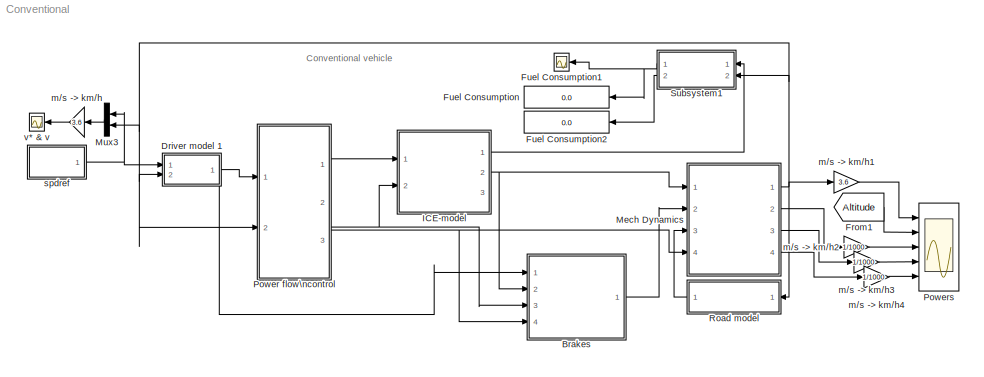
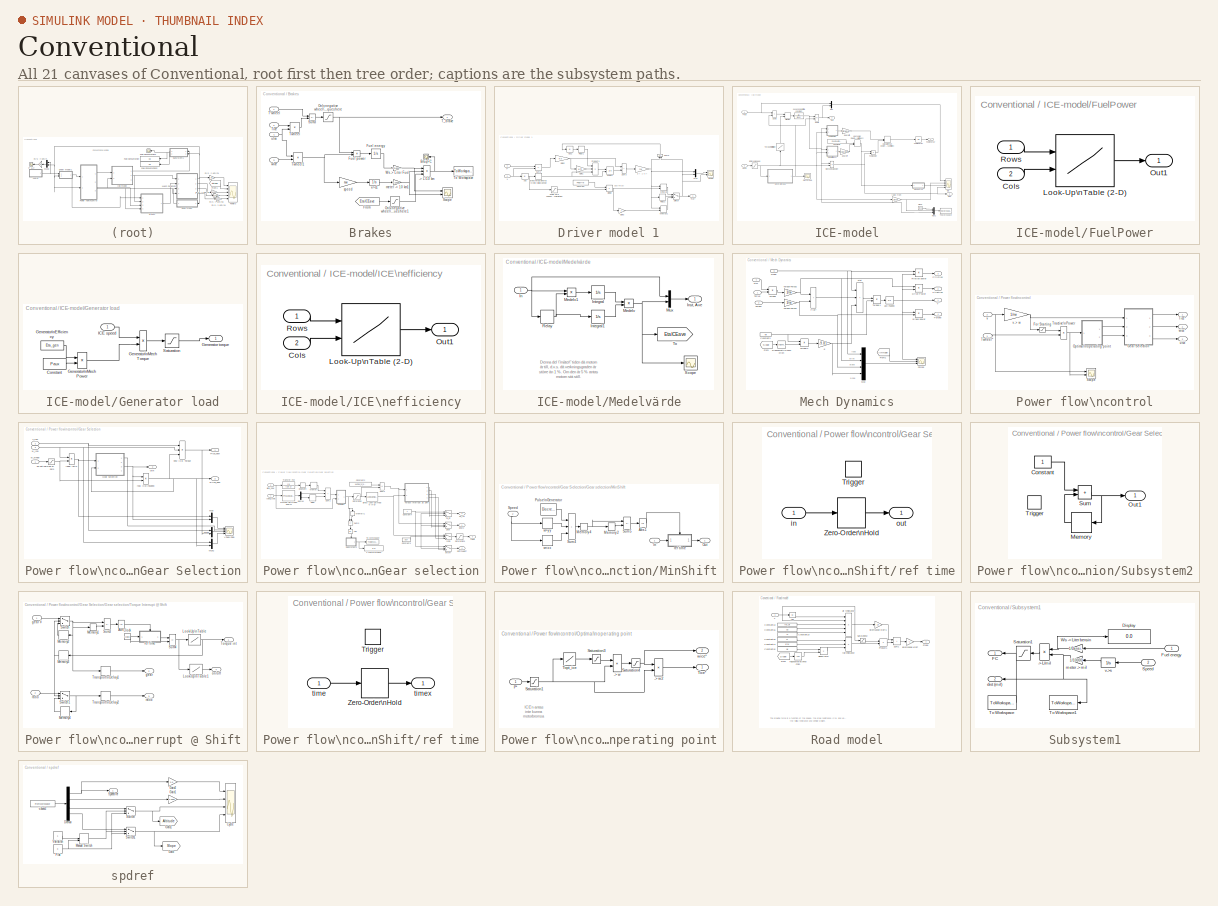
[diagram: thumbnail index - all 21 canvases of the model, root first then tree order]
MODEL Conventional
KIND model
BLOCK [SubSystem] Brakes
  Ports = [4, 1]
  RequestExecContextInheritance = off
  SID = 1
BLOCK [Product] Brakes/-> L//10 km
  InputSameDT = on
  Inputs = *//
  OutDataTypeStr = Inherit: Same as first input
  Ports = [3, 1]
  SID = 6
  SaturateOnIntegerOverflow = on
BLOCK [Scope] Brakes/BrEqFC
  Floating = off
  NameLocation = top
  NumInputPorts = 1
  Ports = [1]
  SID = 7
  ScopeSpecificationString = C++SS(StrPVP('Location','[596, 319, 1214, 719]'),StrPVP('Open','off'),StrPVP('ZoomMode','yonly'),MxPVP('AxesTitles',54,'struct(''axes1'',''Bränsleförbrukning [Liter/mil]'')'),StrPVP('ShowLegends','off'),StrPVP('TimeRange','1200'),StrPVP('YMin','-2.6'),StrPVP('YMax','-2.1'),StrPVP('SaveName','ScopeData1'),StrPVP('DataFormat','StructureWithTime'),StrPVP('MaxDataPoints','5000000'),StrPVP('BlockParamS...<+110ch>
BLOCK [From] Brakes/From
  CloseFcn = tagdialog Close
  GotoTag = EtaICEave
  SID = 8
  TagVisibility = global
BLOCK [Integrator] Brakes/Fuel energy 
  Ports = [1, 1]
  SID = 9
BLOCK [Product] Brakes/Fuel power
  InputSameDT = on
  Inputs = **
  OutDataTypeStr = Inherit: Same as first input
  Ports = [2, 1]
  SID = 10
  SaturateOnIntegerOverflow = on
BLOCK [Saturate] Brakes/Only negative wheel\ntorques here
  LowerLimit = -inf
  SID = 11
  UpperLimit = 0
BLOCK [Saturate] Brakes/Only negative wheel\ntorques here1
  LowerLimit = eps
  SID = 12
  UpperLimit = inf
BLOCK [Scope] Brakes/Scope
  Floating = off
  NumInputPorts = 2
  Ports = [2]
  SID = 13
  ScopeSpecificationString = C++SS(StrPVP('Location','[635, 215, 970, 652]'),StrPVP('Open','off'),MxPVP('AxesTitles',54,'struct(''axes1'',''%<SignalLabel>'',''axes2'',''%<SignalLabel>'')'),StrPVP('ShowLegends','off'),StrPVP('YMin','-5~-5'),StrPVP('YMax','5~5'),StrPVP('SaveName','ScopeData6'),StrPVP('DataFormat','StructureWithTime'),StrPVP('LimitDataPoints','off'),StrPVP('BlockParamSampleTime','0'),StrPVP('Decimation','1'),Str...<+35ch>
BLOCK [Sum] Brakes/Sum3
  IconShape = rectangular
  InputSameDT = on
  Inputs = +-
  OutDataTypeStr = Inherit: Same as first input
  Ports = [2, 1]
  SID = 14
  SaturateOnIntegerOverflow = on
BLOCK [Inport] Brakes/T*wheel
  SID = 2
BLOCK [Outport] Brakes/T_brake
  InitialOutput = 0
  SID = 21
  VectorParamsAs1DForOutWhenUnconnected = off
BLOCK [Inport] Brakes/Tice
  Port = 2
  SID = 3
BLOCK [ToWorkspace] Brakes/To Workspace
  MaxDataPoints = inf
  Ports = [1]
  SID = 15
  SampleTime = -1
  VariableName = BrEqFC
BLOCK [Product] Brakes/Twheel
  InputSameDT = on
  OutDataTypeStr = Inherit: Same as first input
  Ports = [2, 1]
  SID = 16
  SaturateOnIntegerOverflow = on
BLOCK [Product] Brakes/Twheel1
  InputSameDT = on
  Inputs = */
  OutDataTypeStr = Inherit: Same as first input
  Ports = [2, 1]
  SID = 309
  SaturateOnIntegerOverflow = on
BLOCK [Gain] Brakes/Ws -> Liter Fuel
  Gain = 1/Density
  OutDataTypeStr = Inherit: Same as input
  ParamDataTypeStr = Inherit: Same as input
  SID = 17
  SaturateOnIntegerOverflow = on
BLOCK [Gain] Brakes/meter -> 10 km1
  Gain = 1/10000
  OutDataTypeStr = Inherit: Same as input
  ParamDataTypeStr = Inherit: Same as input
  SID = 18
  SaturateOnIntegerOverflow = on
BLOCK [Gain] Brakes/speed
  Gain = rw
  OutDataTypeStr = Inherit: Same as input
  ParamDataTypeStr = Inherit: Same as input
  SID = 19
  SaturateOnIntegerOverflow = on
BLOCK [Inport] Brakes/utvx
  Port = 4
  SID = 5
BLOCK [Integrator] Brakes/v->s1
  InitialCondition = 100
  LimitOutput = on
  LowerSaturationLimit = 100
  Ports = [1, 1]
  SID = 20
BLOCK [Inport] Brakes/wice
  Port = 3
  SID = 4
BLOCK [SubSystem] Driver model 1
  NameLocation = top
  Ports = [2, 1]
  RequestExecContextInheritance = off
  SID = 22
BLOCK [Abs] Driver model 1/Abs
  SID = 25
BLOCK [Abs] Driver model 1/Abs2
  SID = 26
BLOCK [Constant] Driver model 1/Constant
  SID = 27
  Value = Pmax*rw
BLOCK [Product] Driver model 1/Divide
  Inputs = */
  Ports = [2, 1]
  SID = 28
BLOCK [Gain] Driver model 1/F * -> T *
  Gain = rw
  OutDataTypeStr = Inherit: Same as input
  ParamDataTypeStr = Inherit: Same as input
  SID = 29
  SaturateOnIntegerOverflow = on
BLOCK [Gain] Driver model 1/Gain1
  Gain = 1/Ti
  OutDataTypeStr = Inherit: Same as input
  ParamDataTypeStr = Inherit: Same as input
  SID = 30
  SaturateOnIntegerOverflow = on
BLOCK [Gain] Driver model 1/Gain2
  Gain = Kv
  OutDataTypeStr = Inherit: Same as input
  ParamDataTypeStr = Inherit: Same as input
  SID = 31
  SaturateOnIntegerOverflow = on
BLOCK [Gain] Driver model 1/Gain3
  Gain = -1
  OutDataTypeStr = Inherit: Same as input
  ParamDataTypeStr = Inherit: Same as input
  SID = 32
  SaturateOnIntegerOverflow = on
BLOCK [MinMax] Driver model 1/MinMax
  Inputs = 2
  Ports = [2, 1]
  SID = 33
BLOCK [MinMax] Driver model 1/MinMax1
  Function = max
  Inputs = 2
  Ports = [2, 1]
  SID = 34
BLOCK [Mux] Driver model 1/Mux
  DisplayOption = bar
  Inputs = 2
  Ports = [2, 1]
  SID = 311
BLOCK [Product] Driver model 1/Product1
  InputSameDT = on
  Inputs = 3
  NameLocation = top
  OutDataTypeStr = Inherit: Same as first input
  Ports = [3, 1]
  SID = 35
  SaturateOnIntegerOverflow = on
BLOCK [Relay] Driver model 1/Relay1
  OffOutputValue = 1
  OnOutputValue = 0
  SID = 36
BLOCK [Relay] Driver model 1/Relay2
  OffOutputValue = 1
  OnOutputValue = 10
  SID = 37
BLOCK [Scope] Driver model 1/Scope
  Floating = off
  NumInputPorts = 2
  Ports = [2]
  SID = 310
  ScopeSpecificationString = Simulink.scopes.TimeScopeBlockCfg('CurrentConfiguration', extmgr.ConfigurationSet(extmgr.Configuration('Core','General UI',true),extmgr.Configuration('Core','Source UI',true),extmgr.Configuration('Sources','WiredSimulink',true,'DataLoggingVariableName','ScopeData1'),extmgr.Configuration('Visuals','Time Domain',true,'SerializedDisplays',{struct('MinYLimReal','-13248.18703','MaxYLimReal','30622.5335...<+2024ch>
BLOCK [Relay] Driver model 1/Stäng integralverkan\nvid stillastående
  OffSwitchValue = 0.3-eps
  OnSwitchValue = 0.3
  SID = 38
BLOCK [Sum] Driver model 1/Sum2
  IconShape = rectangular
  InputSameDT = on
  Inputs = +-
  OutDataTypeStr = Inherit: Same as first input
  Ports = [2, 1]
  SID = 39
  SaturateOnIntegerOverflow = on
BLOCK [Sum] Driver model 1/Sum3
  IconShape = rectangular
  InputSameDT = on
  OutDataTypeStr = Inherit: Same as first input
  Ports = [2, 1]
  SID = 40
  SaturateOnIntegerOverflow = on
BLOCK [Sum] Driver model 1/Sum5
  IconShape = rectangular
  InputSameDT = on
  Inputs = +-
  NameLocation = right
  OutDataTypeStr = Inherit: Same as first input
  Ports = [2, 1]
  SID = 41
  SaturateOnIntegerOverflow = on
BLOCK [Switch] Driver model 1/Switch
  InputSameDT = off
  SID = 42
  SaturateOnIntegerOverflow = off
BLOCK [Outport] Driver model 1/Ttot*
  InitialOutput = 0
  SID = 45
  VectorParamsAs1DForOutWhenUnconnected = off
BLOCK [Integrator] Driver model 1/Wbatt
  ExternalReset = falling
  LowerSaturationLimit = -10000
  NameLocation = top
  Ports = [2, 1]
  SID = 43
  UpperSaturationLimit = 1000
BLOCK [Saturate] Driver model 1/avoid zero speed\nfor max torque calculation
  LowerLimit = 5/3.6
  SID = 44
  UpperLimit = inf
BLOCK [Inport] Driver model 1/v
  Port = 2
  SID = 24
BLOCK [Inport] Driver model 1/v*
  SID = 23
BLOCK [From] From1
  CloseFcn = tagdialog Close
  GotoTag = Altitude
  IconDisplay = Tag and signal name
  SID = 48
  TagVisibility = global
BLOCK [Display] Fuel Consumption
  Decimation = 1
  NameLocation = top
  Ports = [1]
  SID = 312
BLOCK [Scope] Fuel Consumption1
  Floating = off
  NumInputPorts = 1
  Ports = [1]
  SID = 314
  ScopeSpecificationString = Simulink.scopes.TimeScopeBlockCfg('CurrentConfiguration', extmgr.ConfigurationSet(extmgr.Configuration('Core','General UI',true),extmgr.Configuration('Core','Source UI',true),extmgr.Configuration('Sources','WiredSimulink',true,'DataLoggingVariableName','ScopeData2','DataLoggingSaveFormat','Array','DataLoggingDecimation','1','DataLoggingDecimateData',true),extmgr.Configuration('Visuals','Time Domai...<+1560ch>
BLOCK [Display] Fuel Consumption2
  Decimation = 1
  NameLocation = top
  Ports = [1]
  SID = 313
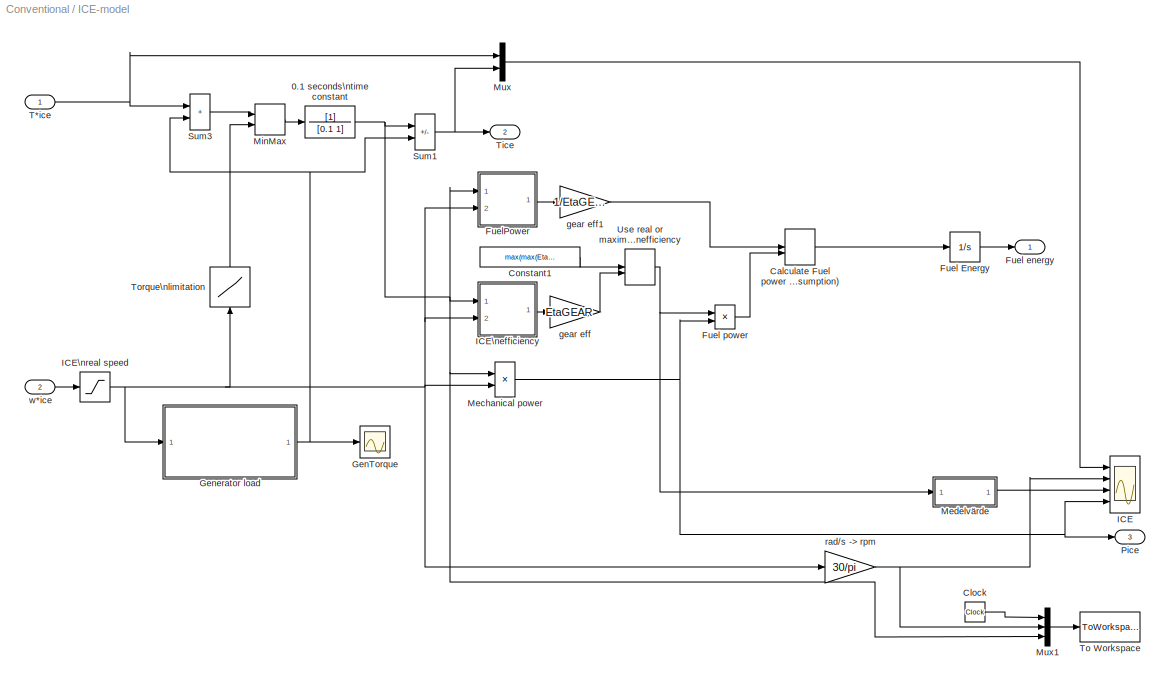
BLOCK [SubSystem] ICE-model
  NameLocation = top
  Ports = [2, 3]
  RequestExecContextInheritance = off
  SID = 50
BLOCK [TransferFcn] ICE-model/0.1 seconds\ntime constant
  Denominator = [0.1 1]
  SID = 53
BLOCK [ManualSwitch] ICE-model/Calculate Fuel power directly\n(including idle consumption)
  NameLocation = top
  SID = 54
BLOCK [Clock] ICE-model/Clock
  SID = 55
BLOCK [Constant] ICE-model/Constant1
  SID = 56
  Value = max(max(EtaICE))
BLOCK [Integrator] ICE-model/Fuel Energy
  Ports = [1, 1]
  SID = 57
BLOCK [Outport] ICE-model/Fuel energy
  InitialOutput = 0
  SID = 103
  VectorParamsAs1DForOutWhenUnconnected = off
BLOCK [Product] ICE-model/Fuel power
  InputSameDT = on
  Inputs = /*
  OutDataTypeStr = Inherit: Same as first input
  Ports = [2, 1]
  SID = 58
  SaturateOnIntegerOverflow = on
BLOCK [SubSystem] ICE-model/FuelPower
  Ports = [2, 1]
  RequestExecContextInheritance = off
  SID = 59
BLOCK [Inport] ICE-model/FuelPower/Cols
  Port = 2
  SID = 61
BLOCK [Lookup2D] ICE-model/FuelPower/Look-Up\nTable (2-D)
  ColumnIndex = y
  RowIndex = x
  SID = 62
  Table = t
BLOCK [Outport] ICE-model/FuelPower/Out1
  SID = 63
  VectorParamsAs1DForOutWhenUnconnected = off
BLOCK [Inport] ICE-model/FuelPower/Rows
  SID = 60
BLOCK [Scope] ICE-model/GenTorque
  Floating = off
  NumInputPorts = 1
  Ports = [1]
  SID = 299
  ScopeSpecificationString = C++SS(StrPVP('Location','[51, 447, 840, 686]'),StrPVP('Open','off'),MxPVP('AxesTitles',54,'struct(''axes1'',''%<SignalLabel>'')'),MxPVP('ScopeGraphics',57,'struct(''FigureColor'',''[0.5 0.5 0.5]'',''AxesColor'',''[0 0 0]'',''AxesTickColor'',''[1 1 1]'',''LineColors'',''[1 1 0;1 0 1;0 1 1;1 0 0;0 1 0;0 0 1]'',''LineStyles'',''-|-|-|-|-|-'',''LineWidths'',''[0.5 0.5 0.5 0.5 0.5 0.5]'',''MarkerStyles...<+309ch>
BLOCK [SubSystem] ICE-model/Generator load
  Ports = [1, 1]
  RequestExecContextInheritance = off
  SID = 64
BLOCK [Constant] ICE-model/Generator load/Constant
  NameLocation = top
  SID = 66
  Value = Paux
BLOCK [Outport] ICE-model/Generator load/Generator torque
  SID = 71
  VectorParamsAs1DForOutWhenUnconnected = off
BLOCK [Constant] ICE-model/Generator load/Generator\nEfficiency
  NameLocation = top
  SID = 67
  Value = Eta_gen
BLOCK [Product] ICE-model/Generator load/Generator\nMech Power
  InputSameDT = on
  Inputs = /*
  OutDataTypeStr = Inherit: Same as first input
  Ports = [2, 1]
  SID = 68
  SaturateOnIntegerOverflow = on
BLOCK [Product] ICE-model/Generator load/Generator\nMech Torque
  InputSameDT = on
  Inputs = /*
  NameLocation = top
  OutDataTypeStr = Inherit: Same as first input
  Ports = [2, 1]
  SID = 69
  SaturateOnIntegerOverflow = on
BLOCK [Inport] ICE-model/Generator load/ICE speed
  SID = 65
BLOCK [Saturate] ICE-model/Generator load/Saturation
  LowerLimit = 0
  SID = 70
  UpperLimit = Paux*2/(wice_max/5)
BLOCK [Scope] ICE-model/ICE
  Floating = off
  NumInputPorts = 4
  Ports = [4]
  SID = 72
  ScopeSpecificationString = Simulink.scopes.TimeScopeBlockCfg('CurrentConfiguration', extmgr.ConfigurationSet(extmgr.Configuration('Core','General UI',true),extmgr.Configuration('Core','Source UI',true),extmgr.Configuration('Sources','WiredSimulink',true,'DataLogging',true,'DataLoggingSaveFormat','StructureWithTime','DataLoggingMaxPoints','50000','DataLoggingLimitDataPoints',true,'DataLoggingDecimation','1','DataLoggingDecim...<+3890ch>
BLOCK [SubSystem] ICE-model/ICE\nefficiency
  Ports = [2, 1]
  RequestExecContextInheritance = off
  SID = 73
BLOCK [Inport] ICE-model/ICE\nefficiency/Cols
  Port = 2
  SID = 75
BLOCK [Lookup2D] ICE-model/ICE\nefficiency/Look-Up\nTable (2-D)
  ColumnIndex = y
  RowIndex = x
  SID = 76
  Table = t
BLOCK [Outport] ICE-model/ICE\nefficiency/Out1
  SID = 77
  VectorParamsAs1DForOutWhenUnconnected = off
BLOCK [Inport] ICE-model/ICE\nefficiency/Rows
  SID = 74
BLOCK [Saturate] ICE-model/ICE\nreal speed
  LowerLimit = wice_min
  SID = 78
  UpperLimit = wice_max
BLOCK [Product] ICE-model/Mechanical power
  InputSameDT = on
  OutDataTypeStr = Inherit: Same as first input
  Ports = [2, 1]
  SID = 79
  SaturateOnIntegerOverflow = on
BLOCK [SubSystem] ICE-model/Medelvärde
  Ports = [1, 1]
  RequestExecContextInheritance = off
  SID = 80
BLOCK [Inport] ICE-model/Medelvärde/In
  SID = 81
BLOCK [Outport] ICE-model/Medelvärde/Inst, Ave
  SID = 90
  VectorParamsAs1DForOutWhenUnconnected = off
BLOCK [Integrator] ICE-model/Medelvärde/Integral
  Ports = [1, 1]
  SID = 82
BLOCK [Integrator] ICE-model/Medelvärde/Integral1
  InitialCondition = 4
  LimitOutput = on
  LowerSaturationLimit = 1
  Ports = [1, 1]
  SID = 83
BLOCK [Product] ICE-model/Medelvärde/Medelv
  InputSameDT = on
  Inputs = */
  OutDataTypeStr = Inherit: Same as first input
  Ports = [2, 1]
  SID = 84
  SaturateOnIntegerOverflow = on
BLOCK [Product] ICE-model/Medelvärde/Medelv1
  InputSameDT = on
  Inputs = **
  OutDataTypeStr = Inherit: Same as first input
  Ports = [2, 1]
  SID = 85
  SaturateOnIntegerOverflow = on
BLOCK [Mux] ICE-model/Medelvärde/Mux
  DisplayOption = bar
  Inputs = 2
  Ports = [2, 1]
  SID = 86
BLOCK [Relay] ICE-model/Medelvärde/Relay
  OffSwitchValue = 0.04
  OnSwitchValue = 0.05
  SID = 87
BLOCK [Scope] ICE-model/Medelvärde/Scope
  Floating = off
  NumInputPorts = 1
  Ports = [1]
  SID = 88
  ScopeSpecificationString = C++SS(StrPVP('Location','[188, 365, 512, 604]'),StrPVP('Open','off'),MxPVP('AxesTitles',54,'struct(''axes1'',''%<SignalLabel>'')'),StrPVP('ShowLegends','off'),StrPVP('YMin','0'),StrPVP('YMax','0.13'),StrPVP('SaveName','ScopeData5'),StrPVP('DataFormat','StructureWithTime'),StrPVP('BlockParamSampleTime','0'),StrPVP('LimitDataPoints','on'),StrPVP('Decimation','1'),StrPVP('BlockParamSampleInput','off'...<+2ch>
BLOCK [Goto] ICE-model/Medelvärde/To
  GotoTag = EtaICEave
  SID = 89
  TagVisibility = global
BLOCK [MinMax] ICE-model/MinMax
  InputSameDT = on
  Inputs = 2
  Ports = [2, 1]
  SID = 92
  SaturateOnIntegerOverflow = on
BLOCK [Mux] ICE-model/Mux
  DisplayOption = bar
  Inputs = 2
  Ports = [2, 1]
  SID = 93
BLOCK [Mux] ICE-model/Mux1
  DisplayOption = bar
  Inputs = 3
  Ports = [3, 1]
  SID = 94
BLOCK [Outport] ICE-model/Pice
  InitialOutput = 0
  Port = 3
  SID = 105
  VectorParamsAs1DForOutWhenUnconnected = off
BLOCK [Sum] ICE-model/Sum1
  IconShape = rectangular
  Inputs = +-
  Ports = [2, 1]
  SID = 95
  SaturateOnIntegerOverflow = on
BLOCK [Sum] ICE-model/Sum3
  IconShape = rectangular
  Ports = [2, 1]
  SID = 96
  SaturateOnIntegerOverflow = on
BLOCK [Inport] ICE-model/T*ice
  NameLocation = top
  SID = 51
BLOCK [Outport] ICE-model/Tice
  InitialOutput = 0
  Port = 2
  SID = 104
  VectorParamsAs1DForOutWhenUnconnected = off
BLOCK [ToWorkspace] ICE-model/To Workspace
  MaxDataPoints = inf
  Ports = [1]
  SID = 97
  SampleTime = -1
  VariableName = tWTice
BLOCK [Lookup] ICE-model/Torque\nlimitation
  InputValues = Wice
  NameLocation = right
  SID = 98
  Table = Tlim_ice
BLOCK [ManualSwitch] ICE-model/Use real or maximum\nefficiency
  CurrentSetting = 0
  NameLocation = top
  SID = 99
BLOCK [Gain] ICE-model/gear eff
  Gain = EtaGEAR
  NameLocation = top
  OutDataTypeStr = Inherit: Same as input
  ParamDataTypeStr = Inherit: Same as input
  SID = 100
  SaturateOnIntegerOverflow = on
BLOCK [Gain] ICE-model/gear eff1
  Gain = 1/EtaGEAR
  NameLocation = top
  OutDataTypeStr = Inherit: Same as input
  ParamDataTypeStr = Inherit: Same as input
  SID = 101
  SaturateOnIntegerOverflow = on
BLOCK [Gain] ICE-model/rad//s -> rpm
  Gain = 30/pi
  NameLocation = top
  OutDataTypeStr = Inherit: Same as input
  ParamDataTypeStr = Inherit: Same as input
  SID = 102
  SaturateOnIntegerOverflow = on
BLOCK [Inport] ICE-model/w*ice
  NameLocation = top
  Port = 2
  SID = 52
BLOCK [SubSystem] Mech Dynamics
  NameLocation = top
  Ports = [4, 4]
  RequestExecContextInheritance = off
  SID = 106
BLOCK [Product] Mech Dynamics/Brake power
  InputSameDT = on
  OutDataTypeStr = Inherit: Same as first input
  Ports = [2, 1]
  SID = 111
  SaturateOnIntegerOverflow = on
BLOCK [Constant] Mech Dynamics/Constant3
  SID = 112
  Value = Mv
BLOCK [Product] Mech Dynamics/Drive Power
  InputSameDT = on
  OutDataTypeStr = Inherit: Same as first input
  Ports = [2, 1]
  SID = 113
  SaturateOnIntegerOverflow = on
BLOCK [Sum] Mech Dynamics/F tot*
  IconShape = rectangular
  InputSameDT = on
  OutDataTypeStr = Inherit: Same as first input
  Ports = [2, 1]
  SID = 114
  SaturateOnIntegerOverflow = on
BLOCK [Scope] Mech Dynamics/Forces
  Floating = off
  NumInputPorts = 3
  Ports = [3]
  SID = 115
  ScopeSpecificationString = C++SS(StrPVP('Location','[275, 145, 909, 728]'),StrPVP('Open','off'),StrPVP('ZoomMode','yonly'),MxPVP('AxesTitles',54,'struct(''axes1'',''Speed [m/s]'',''axes2'',''Altitude [m]'',''axes3'',''Linear Forces [N]'')'),StrPVP('ShowLegends','off'),StrPVP('YMin','0~-5~-5'),StrPVP('YMax','500000~5~5'),StrPVP('SaveName','ScopeData4'),StrPVP('DataFormat','StructureWithTime'),StrPVP('LimitDataPoints','off'),...<+98ch>
BLOCK [Product] Mech Dynamics/Friktion power
  InputSameDT = on
  OutDataTypeStr = Inherit: Same as first input
  Ports = [2, 1]
  SID = 116
  SaturateOnIntegerOverflow = on
BLOCK [Inport] Mech Dynamics/Froad
  NameLocation = top
  Port = 3
  SID = 109
BLOCK [From] Mech Dynamics/From
  CloseFcn = tagdialog Close
  GotoTag = Slope
  IconDisplay = Tag and signal name
  SID = 117
  TagVisibility = global
BLOCK [From] Mech Dynamics/From1
  CloseFcn = tagdialog Close
  GotoTag = Altitude
  IconDisplay = Tag and signal name
  SID = 118
  TagVisibility = global
BLOCK [Sum] Mech Dynamics/Ftot
  IconShape = rectangular
  InputSameDT = on
  Inputs = +++
  OutDataTypeStr = Inherit: Same as first input
  Ports = [3, 1]
  SID = 119
  SaturateOnIntegerOverflow = on
BLOCK [Mux] Mech Dynamics/Mux
  DisplayOption = bar
  Ports = [4, 1]
  SID = 120
BLOCK [Outport] Mech Dynamics/Pbrake
  InitialOutput = 0
  Port = 4
  SID = 132
  VectorParamsAs1DForOutWhenUnconnected = off
BLOCK [Outport] Mech Dynamics/Pfriction
  InitialOutput = 0
  Port = 3
  SID = 131
  VectorParamsAs1DForOutWhenUnconnected = off
BLOCK [Outport] Mech Dynamics/Ptraction
  InitialOutput = 0
  Port = 2
  SID = 130
  VectorParamsAs1DForOutWhenUnconnected = off
BLOCK [Inport] Mech Dynamics/Tbrake
  Port = 2
  SID = 108
BLOCK [Inport] Mech Dynamics/Tdrive
  NameLocation = top
  SID = 107
BLOCK [Gain] Mech Dynamics/Torque-Force1
  Gain = 1/rw
  OutDataTypeStr = Inherit: Same as input
  ParamDataTypeStr = Inherit: Same as input
  SID = 121
  SaturateOnIntegerOverflow = on
BLOCK [Gain] Mech Dynamics/Torque-Force2
  Gain = 1/rw
  NameLocation = top
  OutDataTypeStr = Inherit: Same as input
  ParamDataTypeStr = Inherit: Same as input
  SID = 122
  SaturateOnIntegerOverflow = on
BLOCK [Trigonometry] Mech Dynamics/Trigonometric\nFunction
  Ports = [1, 1]
  SID = 123
BLOCK [Product] Mech Dynamics/Twheel
  InputSameDT = on
  OutDataTypeStr = Inherit: Same as first input
  Ports = [2, 1]
  SID = 124
  SaturateOnIntegerOverflow = on
BLOCK [Product] Mech Dynamics/Twheel1
  InputSameDT = on
  Inputs = */
  OutDataTypeStr = Inherit: Same as first input
  Ports = [2, 1]
  SID = 125
  SaturateOnIntegerOverflow = on
BLOCK [Product] Mech Dynamics/Twheel2
  InputSameDT = on
  Inputs = **
  OutDataTypeStr = Inherit: Same as first input
  Ports = [2, 1]
  SID = 126
  SaturateOnIntegerOverflow = on
BLOCK [Integrator] Mech Dynamics/acc->speed
  LimitOutput = on
  LowerSaturationLimit = 0
  Ports = [1, 1]
  SID = 127
BLOCK [Gain] Mech Dynamics/g
  Gain = -9.81
  OutDataTypeStr = Inherit: Same as input
  ParamDataTypeStr = Inherit: Same as input
  SID = 128
  SaturateOnIntegerOverflow = on
BLOCK [Inport] Mech Dynamics/utvx
  Port = 4
  SID = 110
BLOCK [Outport] Mech Dynamics/v
  InitialOutput = 0
  SID = 129
  VectorParamsAs1DForOutWhenUnconnected = off
BLOCK [Mux] Mux3
  DisplayOption = bar
  Inputs = 2
  NameLocation = top
  Ports = [2, 1]
  SID = 137
BLOCK [SubSystem] Power flow\ncontrol
  NameLocation = top
  Ports = [2, 3]
  RequestExecContextInheritance = off
  SID = 138
BLOCK [Saturate] Power flow\ncontrol/For Starting
  LowerLimit = 1/3.6
  NameLocation = top
  SID = 141
  UpperLimit = inf
BLOCK [SubSystem] Power flow\ncontrol/Gear Selection
  Ports = [3, 3]
  RequestExecContextInheritance = off
  SID = 142
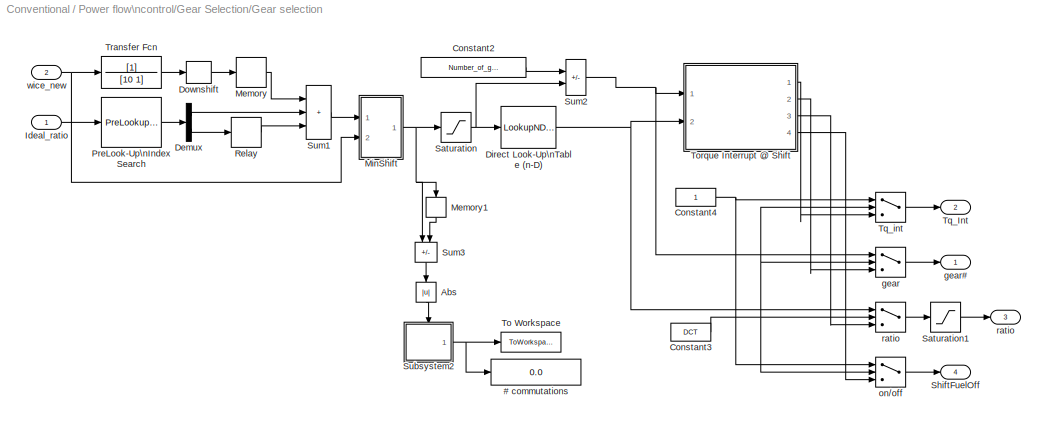
BLOCK [SubSystem] Power flow\ncontrol/Gear Selection/Gear selection
  Ports = [2, 4]
  RequestExecContextInheritance = off
  SID = 146
BLOCK [Display] Power flow\ncontrol/Gear Selection/Gear selection/# commutations
  Decimation = 1
  Ports = [1]
  SID = 149
BLOCK [Abs] Power flow\ncontrol/Gear Selection/Gear selection/Abs
  NameLocation = right
  SID = 150
BLOCK [Constant] Power flow\ncontrol/Gear Selection/Gear selection/Constant2
  SID = 151
  Value = Number_of_gears
BLOCK [Constant] Power flow\ncontrol/Gear Selection/Gear selection/Constant3
  SID = 152
  Value = DCT
BLOCK [Constant] Power flow\ncontrol/Gear Selection/Gear selection/Constant4
  SID = 153
BLOCK [Demux] Power flow\ncontrol/Gear Selection/Gear selection/Demux
  DisplayOption = none
  Outputs = 2
  Ports = [1, 2]
  SID = 154
BLOCK [LookupNDDirect] Power flow\ncontrol/Gear Selection/Gear selection/Direct Look-Up\nTable (n-D)
  NumberOfTableDimensions = 1
  Ports = [1, 1]
  SID = 155
  Table = Utvx_vect
BLOCK [Relay] Power flow\ncontrol/Gear Selection/Gear selection/Downshift
  OffOutputValue = Speedy
  OffSwitchValue = 0.40*wice_max
  OnOutputValue = 0
  OnSwitchValue = 0.85*wice_max
  SID = 156
BLOCK [Inport] Power flow\ncontrol/Gear Selection/Gear selection/Ideal_ratio
  SID = 147
BLOCK [Memory] Power flow\ncontrol/Gear Selection/Gear selection/Memory
  NameLocation = top
  SID = 157
BLOCK [Memory] Power flow\ncontrol/Gear Selection/Gear selection/Memory1
  NameLocation = left
  SID = 158
BLOCK [SubSystem] Power flow\ncontrol/Gear Selection/Gear selection/MinShift
  Ports = [2, 1]
  RequestExecContextInheritance = off
  SID = 159
BLOCK [Abs] Power flow\ncontrol/Gear Selection/Gear selection/MinShift/Abs1
  NameLocation = top
  SID = 162
BLOCK [Inport] Power flow\ncontrol/Gear Selection/Gear selection/MinShift/In
  SID = 160
BLOCK [Memory] Power flow\ncontrol/Gear Selection/Gear selection/MinShift/Memory2
  SID = 163
BLOCK [Memory] Power flow\ncontrol/Gear Selection/Gear selection/MinShift/Memory4
  SID = 164
BLOCK [Outport] Power flow\ncontrol/Gear Selection/Gear selection/MinShift/Out
  SID = 171
  VectorParamsAs1DForOutWhenUnconnected = off
BLOCK [DiscretePulseGenerator] Power flow\ncontrol/Gear Selection/Gear selection/MinShift/Pulse\nGenerator
  NameLocation = top
  Period = 16
  Ports = [0, 1]
  PulseWidth = 8
  SID = 165
  SampleTime = 0.2
BLOCK [Inport] Power flow\ncontrol/Gear Selection/Gear selection/MinShift/Speed
  NameLocation = right
  Port = 2
  SID = 161
BLOCK [Sum] Power flow\ncontrol/Gear Selection/Gear selection/MinShift/Sum4
  IconShape = rectangular
  Inputs = +++
  Ports = [3, 1]
  SID = 166
  SaturateOnIntegerOverflow = on
BLOCK [Sum] Power flow\ncontrol/Gear Selection/Gear selection/MinShift/Sum5
  IconShape = rectangular
  Inputs = +-
  Ports = [2, 1]
  SID = 167
  SaturateOnIntegerOverflow = on
BLOCK [SubSystem] Power flow\ncontrol/Gear Selection/Gear selection/MinShift/ref time
  AncestorBlock = simulink/Model-Wide\nUtilities/Trigger-Based\nLinearization
  Ports = [1, 1, 0, 1]
  RequestExecContextInheritance = off
  SID = 168
  TreatAsAtomicUnit = on
BLOCK [TriggerPort] Power flow\ncontrol/Gear Selection/Gear selection/MinShift/ref time/Trigger
  Ports = []
  SID = 168:2
  VariantControl = Variant
BLOCK [ZeroOrderHold] Power flow\ncontrol/Gear Selection/Gear selection/MinShift/ref time/Zero-Order\nHold
  SID = 168:3
  SampleTime = -1
BLOCK [Inport] Power flow\ncontrol/Gear Selection/Gear selection/MinShift/ref time/in
  SID = 168:1
BLOCK [Outport] Power flow\ncontrol/Gear Selection/Gear selection/MinShift/ref time/out
  SID = 168:4
  VectorParamsAs1DForOutWhenUnconnected = off
BLOCK [Relay] Power flow\ncontrol/Gear Selection/Gear selection/MinShift/w<xx
  OffOutputValue = 1
  OffSwitchValue = wice_min*1.1
  OnOutputValue = 0
  OnSwitchValue = wice_min*1.2
  SID = 169
BLOCK [Relay] Power flow\ncontrol/Gear Selection/Gear selection/MinShift/w>yy
  OffSwitchValue = wice_max*0.7
  OnSwitchValue = wice_max*0.8
  SID = 170
BLOCK [Reference] Power flow\ncontrol/Gear Selection/Gear selection/PreLook-Up\nIndex Search  REF=simulink_need_slupdate/PreLookup\nIndex Search
  IndexDataType = uint32
  MultiThreadCoSim = auto
  Ports = [1, 1]
  SID = 172
  SourceBlock = simulink_need_slupdate/PreLookup\nIndex Search
  SourceProductBaseCode = SL
  SourceType = LookupIdxSearch
  bpData = Utvx_vect
  cacheBpFlag = off
  extrapMode = Linear Extrapolation
  outputFlag = off
  rangeErrorMode = None
  searchMode = Binary Search
BLOCK [Relay] Power flow\ncontrol/Gear Selection/Gear selection/Relay
  OffSwitchValue = 0.48
  OnSwitchValue = 0.52
  SID = 173
BLOCK [Saturate] Power flow\ncontrol/Gear Selection/Gear selection/Saturation
  LowerLimit = 0
  SID = 174
  UpperLimit = Number_of_gears-1
BLOCK [Saturate] Power flow\ncontrol/Gear Selection/Gear selection/Saturation1
  LowerLimit = min(Utvx_vect)
  SID = 175
  UpperLimit = max(Utvx_vect)
BLOCK [Outport] Power flow\ncontrol/Gear Selection/Gear selection/ShiftFuelOff
  Port = 4
  SID = 217
  VectorParamsAs1DForOutWhenUnconnected = off
BLOCK [SubSystem] Power flow\ncontrol/Gear Selection/Gear selection/Subsystem2
  Ports = [0, 1, 0, 1]
  RequestExecContextInheritance = off
  SID = 176
  TreatAsAtomicUnit = on
BLOCK [Constant] Power flow\ncontrol/Gear Selection/Gear selection/Subsystem2/Constant
  SID = 178
BLOCK [Memory] Power flow\ncontrol/Gear Selection/Gear selection/Subsystem2/Memory
  InheritSampleTime = on
  NameLocation = top
  SID = 179
BLOCK [Outport] Power flow\ncontrol/Gear Selection/Gear selection/Subsystem2/Out1
  SID = 181
  VectorParamsAs1DForOutWhenUnconnected = off
BLOCK [Sum] Power flow\ncontrol/Gear Selection/Gear selection/Subsystem2/Sum
  IconShape = rectangular
  InputSameDT = on
  OutDataTypeStr = Inherit: Same as first input
  Ports = [2, 1]
  SID = 180
  SaturateOnIntegerOverflow = on
BLOCK [TriggerPort] Power flow\ncontrol/Gear Selection/Gear selection/Subsystem2/Trigger
  Ports = []
  SID = 177
  TriggerType = either
  VariantControl = Variant
BLOCK [Sum] Power flow\ncontrol/Gear Selection/Gear selection/Sum1
  IconShape = rectangular
  Inputs = +++
  Ports = [3, 1]
  SID = 182
  SaturateOnIntegerOverflow = on
BLOCK [Sum] Power flow\ncontrol/Gear Selection/Gear selection/Sum2
  IconShape = rectangular
  Inputs = +-
  Ports = [2, 1]
  SID = 183
  SaturateOnIntegerOverflow = on
BLOCK [Sum] Power flow\ncontrol/Gear Selection/Gear selection/Sum3
  IconShape = rectangular
  Inputs = +-
  NameLocation = left
  Ports = [2, 1]
  SID = 184
  SaturateOnIntegerOverflow = on
BLOCK [ToWorkspace] Power flow\ncontrol/Gear Selection/Gear selection/To Workspace
  MaxDataPoints = inf
  Ports = [1]
  SID = 185
  SampleTime = -1
  VariableName = shifts
BLOCK [SubSystem] Power flow\ncontrol/Gear Selection/Gear selection/Torque Interrupt @ Shift
  Ports = [2, 4]
  RequestExecContextInheritance = off
  SID = 186
BLOCK [Abs] Power flow\ncontrol/Gear Selection/Gear selection/Torque Interrupt @ Shift/Abs
  NameLocation = top
  SID = 189
BLOCK [Clock] Power flow\ncontrol/Gear Selection/Gear selection/Torque Interrupt @ Shift/Clock
  SID = 190
BLOCK [Lookup] Power flow\ncontrol/Gear Selection/Gear selection/Torque Interrupt @ Shift/Look-Up\nTable
  InputValues = [0 0.2 0.8 1.0]
  LookUpMeth = Interpolation-Use End Values
  SID = 191
  Table = [1 0 0 1]
BLOCK [Lookup] Power flow\ncontrol/Gear Selection/Gear selection/Torque Interrupt @ Shift/Look-Up\nTable1
  InputValues = [0 0.2 0.2+eps 0.8-eps 0.8 1.0]
  LookUpMeth = Interpolation-Use End Values
  SID = 192
  Table = [1 1 0 0 1 1]
BLOCK [Memory] Power flow\ncontrol/Gear Selection/Gear selection/Torque Interrupt @ Shift/Memory1
  SID = 193
BLOCK [Memory] Power flow\ncontrol/Gear Selection/Gear selection/Torque Interrupt @ Shift/Memory2
  InheritSampleTime = on
  SID = 194
BLOCK [Memory] Power flow\ncontrol/Gear Selection/Gear selection/Torque Interrupt @ Shift/Memory3
  InheritSampleTime = on
  SID = 195
BLOCK [Memory] Power flow\ncontrol/Gear Selection/Gear selection/Torque Interrupt @ Shift/Memory4
  InheritSampleTime = on
  SID = 196
BLOCK [Sum] Power flow\ncontrol/Gear Selection/Gear selection/Torque Interrupt @ Shift/Sum3
  IconShape = rectangular
  Inputs = +-
  Ports = [2, 1]
  SID = 197
  SaturateOnIntegerOverflow = on
BLOCK [Sum] Power flow\ncontrol/Gear Selection/Gear selection/Torque Interrupt @ Shift/Sum4
  IconShape = rectangular
  Inputs = -+
  Ports = [2, 1]
  SID = 198
  SaturateOnIntegerOverflow = on
BLOCK [Switch] Power flow\ncontrol/Gear Selection/Gear selection/Torque Interrupt @ Shift/Switch
  InputSameDT = off
  SID = 199
  Threshold = 0.5
BLOCK [Switch] Power flow\ncontrol/Gear Selection/Gear selection/Torque Interrupt @ Shift/Switch1
  InputSameDT = off
  SID = 200
  Threshold = 0.5
BLOCK [Outport] Power flow\ncontrol/Gear Selection/Gear selection/Torque Interrupt @ Shift/Torque int
  SID = 204
  VectorParamsAs1DForOutWhenUnconnected = off
BLOCK [TransportDelay] Power flow\ncontrol/Gear Selection/Gear selection/Torque Interrupt @ Shift/Transport\nDelay1
  DelayTime = 0.6
  Ports = [1, 1]
  SID = 201
BLOCK [TransportDelay] Power flow\ncontrol/Gear Selection/Gear selection/Torque Interrupt @ Shift/Transport\nDelay2
  DelayTime = 0.6
  Ports = [1, 1]
  SID = 202
BLOCK [Outport] Power flow\ncontrol/Gear Selection/Gear selection/Torque Interrupt @ Shift/gear
  Port = 2
  SID = 205
  VectorParamsAs1DForOutWhenUnconnected = off
BLOCK [Inport] Power flow\ncontrol/Gear Selection/Gear selection/Torque Interrupt @ Shift/gear #
  SID = 187
BLOCK [Outport] Power flow\ncontrol/Gear Selection/Gear selection/Torque Interrupt @ Shift/on//off
  Port = 4
  SID = 207
  VectorParamsAs1DForOutWhenUnconnected = off
BLOCK [Inport] Power flow\ncontrol/Gear Selection/Gear selection/Torque Interrupt @ Shift/ratio
  Port = 2
  SID = 188
BLOCK [Outport] Power flow\ncontrol/Gear Selection/Gear selection/Torque Interrupt @ Shift/ratio 
  Port = 3
  SID = 206
  VectorParamsAs1DForOutWhenUnconnected = off
BLOCK [SubSystem] Power flow\ncontrol/Gear Selection/Gear selection/Torque Interrupt @ Shift/ref time
  AncestorBlock = simulink/Model-Wide\nUtilities/Trigger-Based\nLinearization
  Ports = [1, 1, 0, 1]
  RequestExecContextInheritance = off
  SID = 203
  TreatAsAtomicUnit = on
BLOCK [TriggerPort] Power flow\ncontrol/Gear Selection/Gear selection/Torque Interrupt @ Shift/ref time/Trigger
  Ports = []
  SID = 203:2
  VariantControl = Variant
BLOCK [ZeroOrderHold] Power flow\ncontrol/Gear Selection/Gear selection/Torque Interrupt @ Shift/ref time/Zero-Order\nHold
  SID = 203:3
  SampleTime = -1
BLOCK [Inport] Power flow\ncontrol/Gear Selection/Gear selection/Torque Interrupt @ Shift/ref time/time
  SID = 203:1
BLOCK [Outport] Power flow\ncontrol/Gear Selection/Gear selection/Torque Interrupt @ Shift/ref time/timex
  SID = 203:4
  VectorParamsAs1DForOutWhenUnconnected = off
BLOCK [Outport] Power flow\ncontrol/Gear Selection/Gear selection/Tq_Int
  NameLocation = top
  Port = 2
  SID = 215
  VectorParamsAs1DForOutWhenUnconnected = off
BLOCK [Switch] Power flow\ncontrol/Gear Selection/Gear selection/Tq_int
  InputSameDT = off
  SID = 209
  Threshold = 0.5
BLOCK [TransferFcn] Power flow\ncontrol/Gear Selection/Gear selection/Transfer Fcn
  Denominator = [10 1]
  SID = 210
BLOCK [Switch] Power flow\ncontrol/Gear Selection/Gear selection/gear 
  InputSameDT = off
  SID = 211
  Threshold = 0.5
BLOCK [Outport] Power flow\ncontrol/Gear Selection/Gear selection/gear#
  SID = 214
  VectorParamsAs1DForOutWhenUnconnected = off
BLOCK [Switch] Power flow\ncontrol/Gear Selection/Gear selection/on//off 
  InputSameDT = off
  SID = 212
  Threshold = 0.5
BLOCK [Outport] Power flow\ncontrol/Gear Selection/Gear selection/ratio
  Port = 3
  SID = 216
  VectorParamsAs1DForOutWhenUnconnected = off
BLOCK [Switch] Power flow\ncontrol/Gear Selection/Gear selection/ratio 
  InputSameDT = off
  SID = 213
  Threshold = 0.5
BLOCK [Inport] Power flow\ncontrol/Gear Selection/Gear selection/wice_new
  NameLocation = top
  Port = 2
  SID = 148
BLOCK [Mux] Power flow\ncontrol/Gear Selection/Mux
  DisplayOption = bar
  Inputs = 2
  Ports = [2, 1]
  SID = 218
BLOCK [Mux] Power flow\ncontrol/Gear Selection/Mux1
  DisplayOption = bar
  Inputs = 2
  Ports = [2, 1]
  SID = 219
BLOCK [Mux] Power flow\ncontrol/Gear Selection/Mux2
  DisplayOption = bar
  Inputs = 2
  Ports = [2, 1]
  SID = 220
BLOCK [Outport] Power flow\ncontrol/Gear Selection/T*ice_new
  SID = 226
  VectorParamsAs1DForOutWhenUnconnected = off
BLOCK [Inport] Power flow\ncontrol/Gear Selection/T_ice*
  NameLocation = top
  Port = 2
  SID = 144
BLOCK [Scope] Power flow\ncontrol/Gear Selection/Växellåda
  Floating = off
  NumInputPorts = 4
  Ports = [4]
  SID = 221
  ScopeSpecificationString = Simulink.scopes.TimeScopeBlockCfg('CurrentConfiguration', extmgr.ConfigurationSet(extmgr.Configuration('Core','General UI',true),extmgr.Configuration('Core','Source UI',true),extmgr.Configuration('Sources','WiredSimulink',true,'DataLoggingVariableName','ScopeData4','DataLoggingSaveFormat','StructureWithTime','DataLoggingMaxPoints','50000','DataLoggingDecimation','1','DataLoggingDecimateData',true)...<+3908ch>
BLOCK [Saturate] Power flow\ncontrol/Gear Selection/do not\ndivide by zero
  LowerLimit = 1
  SID = 222
  UpperLimit = inf
BLOCK [Product] Power flow\ncontrol/Gear Selection/ideal ratio
  InputSameDT = on
  Inputs = */
  NameLocation = top
  OutDataTypeStr = Inherit: Same as first input
  Ports = [2, 1]
  SID = 223
  SaturateOnIntegerOverflow = on
BLOCK [Product] Power flow\ncontrol/Gear Selection/new ICE Torque
  InputSameDT = on
  Inputs = **/
  NameLocation = top
  OutDataTypeStr = Inherit: Same as first input
  Ports = [3, 1]
  SID = 224
  SaturateOnIntegerOverflow = on
BLOCK [Product] Power flow\ncontrol/Gear Selection/real ICE\nspeed
  InputSameDT = on
  Inputs = **
  OutDataTypeStr = Inherit: Same as first input
  Ports = [2, 1]
  SID = 225
  SaturateOnIntegerOverflow = on
BLOCK [Outport] Power flow\ncontrol/Gear Selection/utvx
  Port = 3
  SID = 228
  VectorParamsAs1DForOutWhenUnconnected = off
BLOCK [Outport] Power flow\ncontrol/Gear Selection/w*ice_new
  Port = 2
  SID = 227
  VectorParamsAs1DForOutWhenUnconnected = off
BLOCK [Inport] Power flow\ncontrol/Gear Selection/w_ice*
  Port = 3
  SID = 145
BLOCK [Inport] Power flow\ncontrol/Gear Selection/w_wheel
  SID = 143
BLOCK [SubSystem] Power flow\ncontrol/Optimal\noperating point
  Ports = [1, 2]
  RequestExecContextInheritance = off
  SID = 229
BLOCK [Product] Power flow\ncontrol/Optimal\noperating point/-> w
  InputSameDT = on
  Inputs = /*
  OutDataTypeStr = Inherit: Same as first input
  Ports = [2, 1]
  SID = 231
  SaturateOnIntegerOverflow = on
BLOCK [Product] Power flow\ncontrol/Optimal\noperating point/-> w2
  InputSameDT = on
  Inputs = /*
  OutDataTypeStr = Inherit: Same as first input
  Ports = [2, 1]
  SID = 232
  SaturateOnIntegerOverflow = on
BLOCK [Inport] Power flow\ncontrol/Optimal\noperating point/P*
  SID = 230
BLOCK [Saturate] Power flow\ncontrol/Optimal\noperating point/Saturation1
  LowerLimit = eps
  SID = 233
  UpperLimit = Pice_max
BLOCK [Saturate] Power flow\ncontrol/Optimal\noperating point/Saturation3
  LowerLimit = eps
  SID = 234
  UpperLimit = Tice_max
BLOCK [Saturate] Power flow\ncontrol/Optimal\noperating point/Saturation4
  LowerLimit = wice_min
  SID = 235
  UpperLimit = wice_max
BLOCK [Outport] Power flow\ncontrol/Optimal\noperating point/Tice*
  InitialOutput = 0
  SID = 237
  VectorParamsAs1DForOutWhenUnconnected = off
BLOCK [Lookup] Power flow\ncontrol/Optimal\noperating point/Topt_ice
  InputValues = PtoT(:,1)
  SID = 236
  Table = PtoT(:,2)
BLOCK [Outport] Power flow\ncontrol/Optimal\noperating point/wice*
  InitialOutput = 0
  Port = 2
  SID = 238
  VectorParamsAs1DForOutWhenUnconnected = off
BLOCK [Scope] Power flow\ncontrol/Scope
  Floating = off
  NumInputPorts = 2
  Ports = [2]
  SID = 240
  ScopeSpecificationString = C++SS(StrPVP('Location','[915, 201, 1239, 440]'),StrPVP('Open','off'),StrPVP('ZoomMode','yonly'),MxPVP('AxesTitles',54,'struct(''axes1'',''%<SignalLabel>'',''axes2'',''%<SignalLabel>'')'),StrPVP('ShowLegends','off'),StrPVP('YMin','0~-15000'),StrPVP('YMax','30~25000'),StrPVP('SaveName','ScopeData7'),StrPVP('DataFormat','StructureWithTime'),StrPVP('LimitDataPoints','off'),StrPVP('BlockParamSampleTim...<+71ch>
BLOCK [Outport] Power flow\ncontrol/Tice*
  SID = 243
  VectorParamsAs1DForOutWhenUnconnected = off
BLOCK [Product] Power flow\ncontrol/Tractive\nPower
  InputSameDT = on
  OutDataTypeStr = Inherit: Same as first input
  Ports = [2, 1]
  SID = 241
  SaturateOnIntegerOverflow = on
BLOCK [Inport] Power flow\ncontrol/Twheel*
  SID = 139
BLOCK [Outport] Power flow\ncontrol/utvx
  Port = 3
  SID = 245
  VectorParamsAs1DForOutWhenUnconnected = off
BLOCK [Inport] Power flow\ncontrol/v
  Port = 2
  SID = 140
BLOCK [Gain] Power flow\ncontrol/v -> w
  Gain = 1/rw
  OutDataTypeStr = Inherit: Same as input
  ParamDataTypeStr = Inherit: Same as input
  SID = 242
  SaturateOnIntegerOverflow = on
BLOCK [Outport] Power flow\ncontrol/wice*
  Port = 2
  SID = 244
  VectorParamsAs1DForOutWhenUnconnected = off
BLOCK [Scope] Powers
  Floating = off
  NumInputPorts = 5
  Ports = [5]
  SID = 246
  ScopeSpecificationString = Simulink.scopes.TimeScopeBlockCfg('CurrentConfiguration', extmgr.ConfigurationSet(extmgr.Configuration('Core','General UI',true),extmgr.Configuration('Core','Source UI',true),extmgr.Configuration('Sources','WiredSimulink',true,'DataLoggingVariableName','ScopeData3','DataLoggingSaveFormat','StructureWithTime','DataLoggingMaxPoints','5000000','DataLoggingLimitDataPoints',true,'DataLoggingDecimation'...<+4563ch>
BLOCK [SubSystem] Road model
  Ports = [1, 1]
  RequestExecContextInheritance = off
  SID = 247
BLOCK [Abs] Road model/Abs
  NameLocation = top
  SID = 249
BLOCK [Gain] Road model/Bromsande kraft
  Gain = -1
  OutDataTypeStr = Inherit: Same as input
  ParamDataTypeStr = Inherit: Same as input
  SID = 250
  SaturateOnIntegerOverflow = on
BLOCK [Gain] Road model/Bromsande kraft1
  Gain = 1/2
  OutDataTypeStr = Inherit: Same as input
  ParamDataTypeStr = Inherit: Same as input
  SID = 251
  SaturateOnIntegerOverflow = on
BLOCK [Constant] Road model/Constant13
  SID = 252
  Value = rho_air
BLOCK [Constant] Road model/Constant14
  SID = 253
  Value = grav
BLOCK [Constant] Road model/Constant15
  SID = 254
  Value = Mv
BLOCK [Constant] Road model/Constant16
  SID = 255
  Value = Cd
BLOCK [Constant] Road model/Constant18
  SID = 256
  Value = Cr
BLOCK [Constant] Road model/Constant19
  SID = 257
  Value = Av
BLOCK [Outport] Road model/Froad
  InitialOutput = 0
  SID = 263
  VectorParamsAs1DForOutWhenUnconnected = off
BLOCK [From] Road model/From
  CloseFcn = tagdialog Close
  GotoTag = Slope
  IconDisplay = Tag and signal name
  SID = 301
  TagVisibility = global
BLOCK [Product] Road model/Product1
  InputSameDT = on
  OutDataTypeStr = Inherit: Same as first input
  Ports = [2, 1]
  SID = 258
  SaturateOnIntegerOverflow = on
BLOCK [Saturate] Road model/Saturation2
  LowerLimit = -1
  NameLocation = top
  SID = 259
  UpperLimit = 1
BLOCK [Product] Road model/SlopeComp
  InputSameDT = on
  Inputs = **
  OutDataTypeStr = Inherit: Same as first input
  Ports = [2, 1]
  SID = 303
  SaturateOnIntegerOverflow = on
BLOCK [Sum] Road model/Sum1
  IconShape = rectangular
  InputSameDT = on
  OutDataTypeStr = Inherit: Same as first input
  Ports = [2, 1]
  SID = 260
  SaturateOnIntegerOverflow = on
BLOCK [Trigonometry] Road model/Trigonometric\nFunction
  Operator = cos
  Ports = [1, 1]
  SID = 302
BLOCK [Product] Road model/air resistance
  InputSameDT = on
  Inputs = 5
  NameLocation = top
  OutDataTypeStr = Inherit: Same as first input
  Ports = [5, 1]
  SID = 261
  SaturateOnIntegerOverflow = on
BLOCK [Product] Road model/roll resistance
  InputSameDT = on
  Inputs = 3
  OutDataTypeStr = Inherit: Same as first input
  Ports = [3, 1]
  SID = 262
  SaturateOnIntegerOverflow = on
BLOCK [Inport] Road model/v 
  NameLocation = top
  SID = 248
BLOCK [SubSystem] Subsystem1
  Ports = [2, 2]
  RequestExecContextInheritance = off
  SID = 315
BLOCK [Product] Subsystem1/-> L//mil
  InputSameDT = on
  Inputs = */
  NameLocation = top
  OutDataTypeStr = Inherit: Same as first input
  Ports = [2, 1]
  SID = 318
  SaturateOnIntegerOverflow = on
BLOCK [Display] Subsystem1/Display
  Decimation = 1
  Ports = [1]
  SID = 319
BLOCK [Outport] Subsystem1/FC
  NameLocation = top
  SID = 326
  VectorParamsAs1DForOutWhenUnconnected = off
BLOCK [Inport] Subsystem1/Fuel energy
  SID = 316
BLOCK [Saturate] Subsystem1/Saturation1
  LowerLimit = eps
  SID = 320
  UpperLimit = inf
BLOCK [Inport] Subsystem1/Speed
  Port = 2
  SID = 317
BLOCK [ToWorkspace] Subsystem1/To Workspace
  MaxDataPoints = inf
  NameLocation = top
  Ports = [1]
  SID = 321
  SampleTime = -1
  VariableName = FC
BLOCK [ToWorkspace] Subsystem1/To Workspace1
  MaxDataPoints = inf
  NameLocation = top
  Ports = [1]
  SID = 322
  SampleTime = -1
  VariableName = DIST
BLOCK [Gain] Subsystem1/Ws -> Liter bensin
  Gain = 1/Density
  NameLocation = top
  OutDataTypeStr = Inherit: Same as input
  ParamDataTypeStr = Inherit: Same as input
  SID = 323
  SaturateOnIntegerOverflow = on
BLOCK [Outport] Subsystem1/dist (mil)
  NameLocation = top
  Port = 2
  SID = 327
  VectorParamsAs1DForOutWhenUnconnected = off
BLOCK [Gain] Subsystem1/meter -> mil
  Gain = 1/10000
  OutDataTypeStr = Inherit: Same as input
  ParamDataTypeStr = Inherit: Same as input
  SID = 324
  SaturateOnIntegerOverflow = on
BLOCK [Integrator] Subsystem1/v->s
  InitialCondition = 100
  LimitOutput = on
  LowerSaturationLimit = 100
  NameLocation = top
  Ports = [1, 1]
  SID = 325
BLOCK [Gain] m//s -> km//h
  Gain = 3.6
  NameLocation = top
  OutDataTypeStr = Inherit: Same as input
  ParamDataTypeStr = Inherit: Same as input
  SID = 276
  SaturateOnIntegerOverflow = on
BLOCK [Gain] m//s -> km//h1
  Gain = 3.6
  NameLocation = top
  OutDataTypeStr = Inherit: Same as input
  ParamDataTypeStr = Inherit: Same as input
  SID = 277
  SaturateOnIntegerOverflow = on
BLOCK [Gain] m//s -> km//h2
  Gain = 1/1000
  NameLocation = top
  OutDataTypeStr = Inherit: Same as input
  ParamDataTypeStr = Inherit: Same as input
  SID = 278
  SaturateOnIntegerOverflow = on
BLOCK [Gain] m//s -> km//h3
  Gain = 1/1000
  NameLocation = top
  OutDataTypeStr = Inherit: Same as input
  ParamDataTypeStr = Inherit: Same as input
  SID = 279
  SaturateOnIntegerOverflow = on
BLOCK [Gain] m//s -> km//h4
  Gain = 1/1000
  NameLocation = top
  OutDataTypeStr = Inherit: Same as input
  ParamDataTypeStr = Inherit: Same as input
  SID = 280
  SaturateOnIntegerOverflow = on
BLOCK [SubSystem] spdref
  Ports = [0, 1]
  RequestExecContextInheritance = off
  SID = 281
BLOCK [Scope] spdref/Cycle
  Floating = off
  NumInputPorts = 4
  Ports = [4]
  SID = 282
  ScopeSpecificationString = C++SS(StrPVP('Location','[749, 79, 1249, 742]'),StrPVP('Open','off'),MxPVP('AxesTitles',54,'struct(''axes1'',''Speed reference [km/h]'',''axes2'',''Position [km]'',''axes3'',''Altitude [m]'',''axes4'',''Slope [rad]'')'),MxPVP('ScopeGraphics',57,'struct(''FigureColor'',''[0.5 0.5 0.5]'',''AxesColor'',''[0 0 0]'',''AxesTickColor'',''[1 1 1]'',''LineColors'',''[1 1 0;1 0 1;0 1 1;1 0 0;0 1 0;0 0 1]'',...<+443ch>
BLOCK [Demux] spdref/Demux
  Ports = [1, 4]
  SID = 283
BLOCK [Constant] spdref/Flat
  SID = 284
  Value = 0
BLOCK [Gain] spdref/Gain1
  Gain = 1/1000
  OutDataTypeStr = Inherit: Same as input
  ParamDataTypeStr = Inherit: Same as input
  SID = 285
  SaturateOnIntegerOverflow = on
BLOCK [Gain] spdref/Gain2
  Gain = 3.6
  OutDataTypeStr = Inherit: Same as input
  ParamDataTypeStr = Inherit: Same as input
  SID = 286
  SaturateOnIntegerOverflow = on
BLOCK [Goto] spdref/Goto
  GotoTag = Slope
  IconDisplay = Tag and signal name
  SID = 287
  TagVisibility = global
BLOCK [Goto] spdref/Goto1
  GotoTag = Altitude
  IconDisplay = Tag and signal name
  SID = 288
  TagVisibility = global
BLOCK [ManualSwitch] spdref/Manual Switch
  SID = 289
BLOCK [Outport] spdref/Speed ref
  SID = 294
  VectorParamsAs1DForOutWhenUnconnected = off
BLOCK [Switch] spdref/Switch
  InputSameDT = off
  SID = 290
  SaturateOnIntegerOverflow = off
  Threshold = 0.50
BLOCK [Switch] spdref/Switch1
  InputSameDT = off
  SID = 291
  SaturateOnIntegerOverflow = off
  Threshold = 0.5
BLOCK [Constant] spdref/Variation
  SID = 292
BLOCK [FromWorkspace] spdref/v-buss2
  SID = 293
  SampleTime = .2
  VariableName = cycle
  ZeroCross = off
BLOCK [Scope] v* & v
  Floating = off
  NameLocation = top
  NumInputPorts = 1
  Ports = [1]
  SID = 297
  ScopeSpecificationString = Simulink.scopes.TimeScopeBlockCfg('CurrentConfiguration', extmgr.ConfigurationSet(extmgr.Configuration('Core','General UI',true),extmgr.Configuration('Core','Source UI',true),extmgr.Configuration('Sources','WiredSimulink',true,'DataLoggingSaveFormat','StructureWithTime','DataLoggingMaxPoints','5000000','DataLoggingLimitDataPoints',true,'DataLoggingDecimation','1','DataLoggingDecimateData',true),ex...<+1838ch>
ANNOTATION (root): Conventional vehicle
ANNOTATION Driver model 1: abs(Tmax)
ANNOTATION ICE-model/Medelvärde: Denna del \"mäter\" tiden då motorn\när till, d.v.s. då verkningsgraden är\nstörre än 1 %. Om den är 5 % antas\nmotorn stå still.
ANNOTATION Mech Dynamics: brake
ANNOTATION Mech Dynamics: drive
ANNOTATION Mech Dynamics: road
ANNOTATION Mech Dynamics: slope
ANNOTATION Power flow\ncontrol/Optimal\noperating point: ICE'n antas\ninte kunna\nmotorbromsa
ANNOTATION Road model: The braking force is a function of the speed, the drag resistance (Cd) and vehicle frontal area,\nthe rolling resistance and vehicle weight.\n
NET Brakes/-> L//10 km:1 -> Brakes/BrEqFC:1, Brakes/To Workspace:1
LINE Brakes/From:1 -> Brakes/Only negative wheel\ntorques here1:1
LINE Brakes/Fuel energy :1 -> Brakes/Ws -> Liter Fuel:1
LINE Brakes/Fuel power:1 -> Brakes/Fuel energy :1
LINE Brakes/Only negative wheel\ntorques here1:1 -> Brakes/-> L//10 km:3
NET Brakes/Only negative wheel\ntorques here:1 -> Brakes/Fuel power:1, Brakes/T_brake:1
LINE Brakes/Sum3:1 -> Brakes/Only negative wheel\ntorques here:1
LINE Brakes/T*wheel:1 -> Brakes/Sum3:1
LINE Brakes/Tice:1 -> Brakes/Twheel:1
NET Brakes/Twheel1:1 -> Brakes/Fuel power:2, Brakes/speed:1
LINE Brakes/Twheel:1 -> Brakes/Sum3:2
NET Brakes/Ws -> Liter Fuel:1 -> Brakes/-> L//10 km:1, Brakes/Scope:1
NET Brakes/meter -> 10 km1:1 -> Brakes/-> L//10 km:2, Brakes/Scope:2
LINE Brakes/speed:1 -> Brakes/v->s1:1
NET Brakes/utvx:1 -> Brakes/Twheel1:1, Brakes/Twheel:2
LINE Brakes/v->s1:1 -> Brakes/meter -> 10 km1:1
LINE Brakes/wice:1 -> Brakes/Twheel1:2
LINE Brakes:1 -> Mech Dynamics:2
LINE Driver model 1/Abs2:1 -> Driver model 1/Relay1:1
NET Driver model 1/Abs:1 -> Driver model 1/Stäng integralverkan\nvid stillastående:1, Driver model 1/avoid zero speed\nfor max torque calculation:1
LINE Driver model 1/Constant:1 -> Driver model 1/Divide:1
NET Driver model 1/Divide:1 -> Driver model 1/Gain3:1, Driver model 1/MinMax:2
NET Driver model 1/F * -> T *:1 -> Driver model 1/MinMax1:1, Driver model 1/MinMax:1, Driver model 1/Mux:1, Driver model 1/Relay2:1, Driver model 1/Sum5:1
LINE Driver model 1/Gain1:1 -> Driver model 1/Product1:2
NET Driver model 1/Gain2:1 -> Driver model 1/Gain1:1, Driver model 1/Sum3:1
LINE Driver model 1/Gain3:1 -> Driver model 1/MinMax1:2
LINE Driver model 1/MinMax1:1 -> Driver model 1/Switch:3
LINE Driver model 1/MinMax:1 -> Driver model 1/Switch:1
LINE Driver model 1/Mux:1 -> Driver model 1/Scope:1
LINE Driver model 1/Product1:1 -> Driver model 1/Wbatt:1
LINE Driver model 1/Relay1:1 -> Driver model 1/Product1:1
LINE Driver model 1/Relay2:1 -> Driver model 1/Switch:2
NET Driver model 1/Stäng integralverkan\nvid stillastående:1 -> Driver model 1/Product1:3, Driver model 1/Wbatt:2
LINE Driver model 1/Sum2:1 -> Driver model 1/Gain2:1
LINE Driver model 1/Sum3:1 -> Driver model 1/F * -> T *:1
LINE Driver model 1/Sum5:1 -> Driver model 1/Abs2:1
NET Driver model 1/Switch:1 -> Driver model 1/Mux:2, Driver model 1/Scope:2, Driver model 1/Sum5:2, Driver model 1/Ttot*:1
LINE Driver model 1/Wbatt:1 -> Driver model 1/Sum3:2
LINE Driver model 1/avoid zero speed\nfor max torque calculation:1 -> Driver model 1/Divide:2
LINE Driver model 1/v*:1 -> Driver model 1/Sum2:1
NET Driver model 1/v:1 -> Driver model 1/Abs:1, Driver model 1/Sum2:2
NET Driver model 1:1 -> Brakes:1, Power flow\ncontrol:1
LINE From1:1 -> Powers:2
NET ICE-model/0.1 seconds\ntime constant:1 -> ICE-model/FuelPower:1, ICE-model/ICE\nefficiency:1, ICE-model/Mechanical power:1, ICE-model/Mux1:3, ICE-model/Sum1:1
LINE ICE-model/Calculate Fuel power directly\n(including idle consumption):1 -> ICE-model/Fuel Energy:1
LINE ICE-model/Clock:1 -> ICE-model/Mux1:1
LINE ICE-model/Constant1:1 -> ICE-model/Use real or maximum\nefficiency:1
LINE ICE-model/Fuel Energy:1 -> ICE-model/Fuel energy:1
LINE ICE-model/Fuel power:1 -> ICE-model/Calculate Fuel power directly\n(including idle consumption):2
LINE ICE-model/FuelPower/Cols:1 -> ICE-model/FuelPower/Look-Up\nTable (2-D):2
LINE ICE-model/FuelPower/Look-Up\nTable (2-D):1 -> ICE-model/FuelPower/Out1:1
LINE ICE-model/FuelPower/Rows:1 -> ICE-model/FuelPower/Look-Up\nTable (2-D):1
LINE ICE-model/FuelPower:1 -> ICE-model/gear eff1:1
LINE ICE-model/Generator load/Constant:1 -> ICE-model/Generator load/Generator\nMech Power:2
LINE ICE-model/Generator load/Generator\nEfficiency:1 -> ICE-model/Generator load/Generator\nMech Power:1
LINE ICE-model/Generator load/Generator\nMech Power:1 -> ICE-model/Generator load/Generator\nMech Torque:2
LINE ICE-model/Generator load/Generator\nMech Torque:1 -> ICE-model/Generator load/Saturation:1
LINE ICE-model/Generator load/ICE speed:1 -> ICE-model/Generator load/Generator\nMech Torque:1
LINE ICE-model/Generator load/Saturation:1 -> ICE-model/Generator load/Generator torque:1
NET ICE-model/Generator load:1 -> ICE-model/GenTorque:1, ICE-model/Sum1:2, ICE-model/Sum3:2
LINE ICE-model/ICE\nefficiency/Cols:1 -> ICE-model/ICE\nefficiency/Look-Up\nTable (2-D):2
LINE ICE-model/ICE\nefficiency/Look-Up\nTable (2-D):1 -> ICE-model/ICE\nefficiency/Out1:1
LINE ICE-model/ICE\nefficiency/Rows:1 -> ICE-model/ICE\nefficiency/Look-Up\nTable (2-D):1
LINE ICE-model/ICE\nefficiency:1 -> ICE-model/gear eff:1
NET ICE-model/ICE\nreal speed:1 -> ICE-model/FuelPower:2, ICE-model/Generator load:1, ICE-model/ICE\nefficiency:2, ICE-model/Mechanical power:2, ICE-model/Torque\nlimitation:1, ICE-model/rad//s -> rpm:1
NET ICE-model/Mechanical power:1 -> ICE-model/Fuel power:2, ICE-model/ICE:4, ICE-model/Pice:1
NET ICE-model/Medelvärde/In:1 -> ICE-model/Medelvärde/Medelv1:1, ICE-model/Medelvärde/Mux:1, ICE-model/Medelvärde/Relay:1
LINE ICE-model/Medelvärde/Integral1:1 -> ICE-model/Medelvärde/Medelv:2
LINE ICE-model/Medelvärde/Integral:1 -> ICE-model/Medelvärde/Medelv:1
LINE ICE-model/Medelvärde/Medelv1:1 -> ICE-model/Medelvärde/Integral:1
NET ICE-model/Medelvärde/Medelv:1 -> ICE-model/Medelvärde/Mux:2, ICE-model/Medelvärde/Scope:1, ICE-model/Medelvärde/To:1
LINE ICE-model/Medelvärde/Mux:1 -> ICE-model/Medelvärde/Inst, Ave:1
NET ICE-model/Medelvärde/Relay:1 -> ICE-model/Medelvärde/Integral1:1, ICE-model/Medelvärde/Medelv1:2
LINE ICE-model/Medelvärde:1 -> ICE-model/ICE:3
LINE ICE-model/MinMax:1 -> ICE-model/0.1 seconds\ntime constant:1
LINE ICE-model/Mux1:1 -> ICE-model/To Workspace:1
LINE ICE-model/Mux:1 -> ICE-model/ICE:1
NET ICE-model/Sum1:1 -> ICE-model/Mux:2, ICE-model/Tice:1
LINE ICE-model/Sum3:1 -> ICE-model/MinMax:1
NET ICE-model/T*ice:1 -> ICE-model/Mux:1, ICE-model/Sum3:1
LINE ICE-model/Torque\nlimitation:1 -> ICE-model/MinMax:2
NET ICE-model/Use real or maximum\nefficiency:1 -> ICE-model/Fuel power:1, ICE-model/Medelvärde:1
LINE ICE-model/gear eff1:1 -> ICE-model/Calculate Fuel power directly\n(including idle consumption):1
LINE ICE-model/gear eff:1 -> ICE-model/Use real or maximum\nefficiency:2
NET ICE-model/rad//s -> rpm:1 -> ICE-model/ICE:2, ICE-model/Mux1:2
LINE ICE-model/w*ice:1 -> ICE-model/ICE\nreal speed:1
LINE ICE-model:1 -> Subsystem1:1
NET ICE-model:2 -> Brakes:2, Mech Dynamics:1
LINE Mech Dynamics/Brake power:1 -> Mech Dynamics/Pbrake:1
NET Mech Dynamics/Constant3:1 -> Mech Dynamics/Twheel1:2, Mech Dynamics/Twheel2:1
LINE Mech Dynamics/Drive Power:1 -> Mech Dynamics/Ptraction:1
LINE Mech Dynamics/F tot*:1 -> Mech Dynamics/Ftot:2
LINE Mech Dynamics/Friktion power:1 -> Mech Dynamics/Pfriction:1
NET Mech Dynamics/Froad:1 -> Mech Dynamics/Friktion power:1, Mech Dynamics/Ftot:1, Mech Dynamics/Mux:1
LINE Mech Dynamics/From1:1 -> Mech Dynamics/Forces:2
LINE Mech Dynamics/From:1 -> Mech Dynamics/Trigonometric\nFunction:1
LINE Mech Dynamics/Ftot:1 -> Mech Dynamics/Twheel1:1
LINE Mech Dynamics/Mux:1 -> Mech Dynamics/Forces:3
LINE Mech Dynamics/Tbrake:1 -> Mech Dynamics/Torque-Force1:1
LINE Mech Dynamics/Tdrive:1 -> Mech Dynamics/Twheel:2
NET Mech Dynamics/Torque-Force1:1 -> Mech Dynamics/Brake power:2, Mech Dynamics/F tot*:2, Mech Dynamics/Mux:3
NET Mech Dynamics/Torque-Force2:1 -> Mech Dynamics/Drive Power:1, Mech Dynamics/F tot*:1, Mech Dynamics/Mux:2
LINE Mech Dynamics/Trigonometric\nFunction:1 -> Mech Dynamics/Twheel2:2
LINE Mech Dynamics/Twheel1:1 -> Mech Dynamics/acc->speed:1
LINE Mech Dynamics/Twheel2:1 -> Mech Dynamics/g:1
LINE Mech Dynamics/Twheel:1 -> Mech Dynamics/Torque-Force2:1
NET Mech Dynamics/acc->speed:1 -> Mech Dynamics/Brake power:1, Mech Dynamics/Drive Power:2, Mech Dynamics/Forces:1, Mech Dynamics/Friktion power:2, Mech Dynamics/v:1
NET Mech Dynamics/g:1 -> Mech Dynamics/Ftot:3, Mech Dynamics/Mux:4
LINE Mech Dynamics/utvx:1 -> Mech Dynamics/Twheel:1
NET Mech Dynamics:1 -> Driver model 1:2, Mux3:2, Power flow\ncontrol:2, Road model:1, Subsystem1:2, m//s -> km//h1:1
LINE Mech Dynamics:2 -> m//s -> km//h2:1
LINE Mech Dynamics:3 -> m//s -> km//h3:1
LINE Mech Dynamics:4 -> m//s -> km//h4:1
LINE Mux3:1 -> m//s -> km//h:1
LINE Power flow\ncontrol/For Starting:1 -> Power flow\ncontrol/Tractive\nPower:1
LINE Power flow\ncontrol/Gear Selection/Gear selection/Abs:1 -> Power flow\ncontrol/Gear Selection/Gear selection/Subsystem2:trigger
LINE Power flow\ncontrol/Gear Selection/Gear selection/Constant2:1 -> Power flow\ncontrol/Gear Selection/Gear selection/Sum2:1
NET Power flow\ncontrol/Gear Selection/Gear selection/Constant3:1 -> Power flow\ncontrol/Gear Selection/Gear selection/Tq_int:2, Power flow\ncontrol/Gear Selection/Gear selection/gear :2, Power flow\ncontrol/Gear Selection/Gear selection/on//off :2, Power flow\ncontrol/Gear Selection/Gear selection/ratio :2
NET Power flow\ncontrol/Gear Selection/Gear selection/Constant4:1 -> Power flow\ncontrol/Gear Selection/Gear selection/Tq_int:1, Power flow\ncontrol/Gear Selection/Gear selection/on//off :1
LINE Power flow\ncontrol/Gear Selection/Gear selection/Demux:1 -> Power flow\ncontrol/Gear Selection/Gear selection/Sum1:2
LINE Power flow\ncontrol/Gear Selection/Gear selection/Demux:2 -> Power flow\ncontrol/Gear Selection/Gear selection/Relay:1
NET Power flow\ncontrol/Gear Selection/Gear selection/Direct Look-Up\nTable (n-D):1 -> Power flow\ncontrol/Gear Selection/Gear selection/Torque Interrupt @ Shift:2, Power flow\ncontrol/Gear Selection/Gear selection/ratio :1
LINE Power flow\ncontrol/Gear Selection/Gear selection/Downshift:1 -> Power flow\ncontrol/Gear Selection/Gear selection/Memory:1
LINE Power flow\ncontrol/Gear Selection/Gear selection/Ideal_ratio:1 -> Power flow\ncontrol/Gear Selection/Gear selection/PreLook-Up\nIndex Search:1
LINE Power flow\ncontrol/Gear Selection/Gear selection/Memory1:1 -> Power flow\ncontrol/Gear Selection/Gear selection/Sum3:2
LINE Power flow\ncontrol/Gear Selection/Gear selection/Memory:1 -> Power flow\ncontrol/Gear Selection/Gear selection/Sum1:1
LINE Power flow\ncontrol/Gear Selection/Gear selection/MinShift/Abs1:1 -> Power flow\ncontrol/Gear Selection/Gear selection/MinShift/ref time:trigger
LINE Power flow\ncontrol/Gear Selection/Gear selection/MinShift/In:1 -> Power flow\ncontrol/Gear Selection/Gear selection/MinShift/ref time:1
LINE Power flow\ncontrol/Gear Selection/Gear selection/MinShift/Memory2:1 -> Power flow\ncontrol/Gear Selection/Gear selection/MinShift/Sum5:2
NET Power flow\ncontrol/Gear Selection/Gear selection/MinShift/Memory4:1 -> Power flow\ncontrol/Gear Selection/Gear selection/MinShift/Memory2:1, Power flow\ncontrol/Gear Selection/Gear selection/MinShift/Sum5:1
LINE Power flow\ncontrol/Gear Selection/Gear selection/MinShift/Pulse\nGenerator:1 -> Power flow\ncontrol/Gear Selection/Gear selection/MinShift/Sum4:1
NET Power flow\ncontrol/Gear Selection/Gear selection/MinShift/Speed:1 -> Power flow\ncontrol/Gear Selection/Gear selection/MinShift/w<xx:1, Power flow\ncontrol/Gear Selection/Gear selection/MinShift/w>yy:1
LINE Power flow\ncontrol/Gear Selection/Gear selection/MinShift/Sum4:1 -> Power flow\ncontrol/Gear Selection/Gear selection/MinShift/Memory4:1
LINE Power flow\ncontrol/Gear Selection/Gear selection/MinShift/Sum5:1 -> Power flow\ncontrol/Gear Selection/Gear selection/MinShift/Abs1:1
LINE Power flow\ncontrol/Gear Selection/Gear selection/MinShift/ref time/Zero-Order\nHold:1 -> Power flow\ncontrol/Gear Selection/Gear selection/MinShift/ref time/out:1
LINE Power flow\ncontrol/Gear Selection/Gear selection/MinShift/ref time/in:1 -> Power flow\ncontrol/Gear Selection/Gear selection/MinShift/ref time/Zero-Order\nHold:1
LINE Power flow\ncontrol/Gear Selection/Gear selection/MinShift/ref time:1 -> Power flow\ncontrol/Gear Selection/Gear selection/MinShift/Out:1
LINE Power flow\ncontrol/Gear Selection/Gear selection/MinShift/w<xx:1 -> Power flow\ncontrol/Gear Selection/Gear selection/MinShift/Sum4:3
LINE Power flow\ncontrol/Gear Selection/Gear selection/MinShift/w>yy:1 -> Power flow\ncontrol/Gear Selection/Gear selection/MinShift/Sum4:2
NET Power flow\ncontrol/Gear Selection/Gear selection/MinShift:1 -> Power flow\ncontrol/Gear Selection/Gear selection/Memory1:1, Power flow\ncontrol/Gear Selection/Gear selection/Saturation:1, Power flow\ncontrol/Gear Selection/Gear selection/Sum3:1
LINE Power flow\ncontrol/Gear Selection/Gear selection/PreLook-Up\nIndex Search:1 -> Power flow\ncontrol/Gear Selection/Gear selection/Demux:1
LINE Power flow\ncontrol/Gear Selection/Gear selection/Relay:1 -> Power flow\ncontrol/Gear Selection/Gear selection/Sum1:3
LINE Power flow\ncontrol/Gear Selection/Gear selection/Saturation1:1 -> Power flow\ncontrol/Gear Selection/Gear selection/ratio:1
NET Power flow\ncontrol/Gear Selection/Gear selection/Saturation:1 -> Power flow\ncontrol/Gear Selection/Gear selection/Direct Look-Up\nTable (n-D):1, Power flow\ncontrol/Gear Selection/Gear selection/Sum2:2
LINE Power flow\ncontrol/Gear Selection/Gear selection/Subsystem2/Constant:1 -> Power flow\ncontrol/Gear Selection/Gear selection/Subsystem2/Sum:1
LINE Power flow\ncontrol/Gear Selection/Gear selection/Subsystem2/Memory:1 -> Power flow\ncontrol/Gear Selection/Gear selection/Subsystem2/Sum:2
NET Power flow\ncontrol/Gear Selection/Gear selection/Subsystem2/Sum:1 -> Power flow\ncontrol/Gear Selection/Gear selection/Subsystem2/Memory:1, Power flow\ncontrol/Gear Selection/Gear selection/Subsystem2/Out1:1
NET Power flow\ncontrol/Gear Selection/Gear selection/Subsystem2:1 -> Power flow\ncontrol/Gear Selection/Gear selection/# commutations:1, Power flow\ncontrol/Gear Selection/Gear selection/To Workspace:1
LINE Power flow\ncontrol/Gear Selection/Gear selection/Sum1:1 -> Power flow\ncontrol/Gear Selection/Gear selection/MinShift:1
NET Power flow\ncontrol/Gear Selection/Gear selection/Sum2:1 -> Power flow\ncontrol/Gear Selection/Gear selection/Torque Interrupt @ Shift:1, Power flow\ncontrol/Gear Selection/Gear selection/gear :1
LINE Power flow\ncontrol/Gear Selection/Gear selection/Sum3:1 -> Power flow\ncontrol/Gear Selection/Gear selection/Abs:1
LINE Power flow\ncontrol/Gear Selection/Gear selection/Torque Interrupt @ Shift/Abs:1 -> Power flow\ncontrol/Gear Selection/Gear selection/Torque Interrupt @ Shift/ref time:trigger
NET Power flow\ncontrol/Gear Selection/Gear selection/Torque Interrupt @ Shift/Clock:1 -> Power flow\ncontrol/Gear Selection/Gear selection/Torque Interrupt @ Shift/Sum4:2, Power flow\ncontrol/Gear Selection/Gear selection/Torque Interrupt @ Shift/ref time:1
LINE Power flow\ncontrol/Gear Selection/Gear selection/Torque Interrupt @ Shift/Look-Up\nTable1:1 -> Power flow\ncontrol/Gear Selection/Gear selection/Torque Interrupt @ Shift/on//off:1
NET Power flow\ncontrol/Gear Selection/Gear selection/Torque Interrupt @ Shift/Look-Up\nTable:1 -> Power flow\ncontrol/Gear Selection/Gear selection/Torque Interrupt @ Shift/Memory3:1, Power flow\ncontrol/Gear Selection/Gear selection/Torque Interrupt @ Shift/Torque int:1
LINE Power flow\ncontrol/Gear Selection/Gear selection/Torque Interrupt @ Shift/Memory1:1 -> Power flow\ncontrol/Gear Selection/Gear selection/Torque Interrupt @ Shift/Sum3:2
LINE Power flow\ncontrol/Gear Selection/Gear selection/Torque Interrupt @ Shift/Memory2:1 -> Power flow\ncontrol/Gear Selection/Gear selection/Torque Interrupt @ Shift/Switch:3
NET Power flow\ncontrol/Gear Selection/Gear selection/Torque Interrupt @ Shift/Memory3:1 -> Power flow\ncontrol/Gear Selection/Gear selection/Torque Interrupt @ Shift/Switch1:2, Power flow\ncontrol/Gear Selection/Gear selection/Torque Interrupt @ Shift/Switch:2
LINE Power flow\ncontrol/Gear Selection/Gear selection/Torque Interrupt @ Shift/Memory4:1 -> Power flow\ncontrol/Gear Selection/Gear selection/Torque Interrupt @ Shift/Switch1:3
LINE Power flow\ncontrol/Gear Selection/Gear selection/Torque Interrupt @ Shift/Sum3:1 -> Power flow\ncontrol/Gear Selection/Gear selection/Torque Interrupt @ Shift/Abs:1
NET Power flow\ncontrol/Gear Selection/Gear selection/Torque Interrupt @ Shift/Sum4:1 -> Power flow\ncontrol/Gear Selection/Gear selection/Torque Interrupt @ Shift/Look-Up\nTable1:1, Power flow\ncontrol/Gear Selection/Gear selection/Torque Interrupt @ Shift/Look-Up\nTable:1
NET Power flow\ncontrol/Gear Selection/Gear selection/Torque Interrupt @ Shift/Switch1:1 -> Power flow\ncontrol/Gear Selection/Gear selection/Torque Interrupt @ Shift/Memory4:1, Power flow\ncontrol/Gear Selection/Gear selection/Torque Interrupt @ Shift/Transport\nDelay2:1
NET Power flow\ncontrol/Gear Selection/Gear selection/Torque Interrupt @ Shift/Switch:1 -> Power flow\ncontrol/Gear Selection/Gear selection/Torque Interrupt @ Shift/Memory1:1, Power flow\ncontrol/Gear Selection/Gear selection/Torque Interrupt @ Shift/Memory2:1, Power flow\ncontrol/Gear Selection/Gear selection/Torque Interrupt @ Shift/Sum3:1, Power flow\ncontrol/Gear Selection/Gear selection/Torque Interrupt @ Shift/Transport\nDelay1:1
LINE Power flow\ncontrol/Gear Selection/Gear selection/Torque Interrupt @ Shift/Transport\nDelay1:1 -> Power flow\ncontrol/Gear Selection/Gear selection/Torque Interrupt @ Shift/gear:1
LINE Power flow\ncontrol/Gear Selection/Gear selection/Torque Interrupt @ Shift/Transport\nDelay2:1 -> Power flow\ncontrol/Gear Selection/Gear selection/Torque Interrupt @ Shift/ratio :1
LINE Power flow\ncontrol/Gear Selection/Gear selection/Torque Interrupt @ Shift/gear #:1 -> Power flow\ncontrol/Gear Selection/Gear selection/Torque Interrupt @ Shift/Switch:1
LINE Power flow\ncontrol/Gear Selection/Gear selection/Torque Interrupt @ Shift/ratio:1 -> Power flow\ncontrol/Gear Selection/Gear selection/Torque Interrupt @ Shift/Switch1:1
LINE Power flow\ncontrol/Gear Selection/Gear selection/Torque Interrupt @ Shift/ref time/Zero-Order\nHold:1 -> Power flow\ncontrol/Gear Selection/Gear selection/Torque Interrupt @ Shift/ref time/timex:1
LINE Power flow\ncontrol/Gear Selection/Gear selection/Torque Interrupt @ Shift/ref time/time:1 -> Power flow\ncontrol/Gear Selection/Gear selection/Torque Interrupt @ Shift/ref time/Zero-Order\nHold:1
LINE Power flow\ncontrol/Gear Selection/Gear selection/Torque Interrupt @ Shift/ref time:1 -> Power flow\ncontrol/Gear Selection/Gear selection/Torque Interrupt @ Shift/Sum4:1
LINE Power flow\ncontrol/Gear Selection/Gear selection/Torque Interrupt @ Shift:1 -> Power flow\ncontrol/Gear Selection/Gear selection/Tq_int:3
LINE Power flow\ncontrol/Gear Selection/Gear selection/Torque Interrupt @ Shift:2 -> Power flow\ncontrol/Gear Selection/Gear selection/gear :3
LINE Power flow\ncontrol/Gear Selection/Gear selection/Torque Interrupt @ Shift:3 -> Power flow\ncontrol/Gear Selection/Gear selection/ratio :3
LINE Power flow\ncontrol/Gear Selection/Gear selection/Torque Interrupt @ Shift:4 -> Power flow\ncontrol/Gear Selection/Gear selection/on//off :3
LINE Power flow\ncontrol/Gear Selection/Gear selection/Tq_int:1 -> Power flow\ncontrol/Gear Selection/Gear selection/Tq_Int:1
LINE Power flow\ncontrol/Gear Selection/Gear selection/Transfer Fcn:1 -> Power flow\ncontrol/Gear Selection/Gear selection/Downshift:1
LINE Power flow\ncontrol/Gear Selection/Gear selection/gear :1 -> Power flow\ncontrol/Gear Selection/Gear selection/gear#:1
LINE Power flow\ncontrol/Gear Selection/Gear selection/on//off :1 -> Power flow\ncontrol/Gear Selection/Gear selection/ShiftFuelOff:1
LINE Power flow\ncontrol/Gear Selection/Gear selection/ratio :1 -> Power flow\ncontrol/Gear Selection/Gear selection/Saturation1:1
NET Power flow\ncontrol/Gear Selection/Gear selection/wice_new:1 -> Power flow\ncontrol/Gear Selection/Gear selection/MinShift:2, Power flow\ncontrol/Gear Selection/Gear selection/Transfer Fcn:1
LINE Power flow\ncontrol/Gear Selection/Gear selection:1 -> Power flow\ncontrol/Gear Selection/Växellåda:2
NET Power flow\ncontrol/Gear Selection/Gear selection:3 -> Power flow\ncontrol/Gear Selection/Mux:2, Power flow\ncontrol/Gear Selection/real ICE\nspeed:1, Power flow\ncontrol/Gear Selection/utvx:1
LINE Power flow\ncontrol/Gear Selection/Mux1:1 -> Power flow\ncontrol/Gear Selection/Växellåda:3
LINE Power flow\ncontrol/Gear Selection/Mux2:1 -> Power flow\ncontrol/Gear Selection/Växellåda:4
LINE Power flow\ncontrol/Gear Selection/Mux:1 -> Power flow\ncontrol/Gear Selection/Växellåda:1
NET Power flow\ncontrol/Gear Selection/T_ice*:1 -> Power flow\ncontrol/Gear Selection/Mux1:1, Power flow\ncontrol/Gear Selection/new ICE Torque:1
NET Power flow\ncontrol/Gear Selection/do not\ndivide by zero:1 -> Power flow\ncontrol/Gear Selection/ideal ratio:2, Power flow\ncontrol/Gear Selection/real ICE\nspeed:2
NET Power flow\ncontrol/Gear Selection/ideal ratio:1 -> Power flow\ncontrol/Gear Selection/Gear selection:1, Power flow\ncontrol/Gear Selection/Mux:1
NET Power flow\ncontrol/Gear Selection/new ICE Torque:1 -> Power flow\ncontrol/Gear Selection/Mux1:2, Power flow\ncontrol/Gear Selection/T*ice_new:1
NET Power flow\ncontrol/Gear Selection/real ICE\nspeed:1 -> Power flow\ncontrol/Gear Selection/Gear selection:2, Power flow\ncontrol/Gear Selection/Mux2:2, Power flow\ncontrol/Gear Selection/new ICE Torque:3, Power flow\ncontrol/Gear Selection/w*ice_new:1
NET Power flow\ncontrol/Gear Selection/w_ice*:1 -> Power flow\ncontrol/Gear Selection/Mux2:1, Power flow\ncontrol/Gear Selection/ideal ratio:1, Power flow\ncontrol/Gear Selection/new ICE Torque:2
LINE Power flow\ncontrol/Gear Selection/w_wheel:1 -> Power flow\ncontrol/Gear Selection/do not\ndivide by zero:1
LINE Power flow\ncontrol/Gear Selection:1 -> Power flow\ncontrol/Tice*:1
LINE Power flow\ncontrol/Gear Selection:2 -> Power flow\ncontrol/wice*:1
LINE Power flow\ncontrol/Gear Selection:3 -> Power flow\ncontrol/utvx:1
LINE Power flow\ncontrol/Optimal\noperating point/-> w2:1 -> Power flow\ncontrol/Optimal\noperating point/Tice*:1
LINE Power flow\ncontrol/Optimal\noperating point/-> w:1 -> Power flow\ncontrol/Optimal\noperating point/Saturation4:1
LINE Power flow\ncontrol/Optimal\noperating point/P*:1 -> Power flow\ncontrol/Optimal\noperating point/Saturation1:1
NET Power flow\ncontrol/Optimal\noperating point/Saturation1:1 -> Power flow\ncontrol/Optimal\noperating point/-> w2:2, Power flow\ncontrol/Optimal\noperating point/-> w:2, Power flow\ncontrol/Optimal\noperating point/Topt_ice:1
LINE Power flow\ncontrol/Optimal\noperating point/Saturation3:1 -> Power flow\ncontrol/Optimal\noperating point/-> w:1
NET Power flow\ncontrol/Optimal\noperating point/Saturation4:1 -> Power flow\ncontrol/Optimal\noperating point/-> w2:1, Power flow\ncontrol/Optimal\noperating point/wice*:1
LINE Power flow\ncontrol/Optimal\noperating point/Topt_ice:1 -> Power flow\ncontrol/Optimal\noperating point/Saturation3:1
LINE Power flow\ncontrol/Optimal\noperating point:1 -> Power flow\ncontrol/Gear Selection:2
LINE Power flow\ncontrol/Optimal\noperating point:2 -> Power flow\ncontrol/Gear Selection:3
NET Power flow\ncontrol/Tractive\nPower:1 -> Power flow\ncontrol/Optimal\noperating point:1, Power flow\ncontrol/Scope:2
LINE Power flow\ncontrol/Twheel*:1 -> Power flow\ncontrol/Tractive\nPower:2
NET Power flow\ncontrol/v -> w:1 -> Power flow\ncontrol/For Starting:1, Power flow\ncontrol/Gear Selection:1
NET Power flow\ncontrol/v:1 -> Power flow\ncontrol/Scope:1, Power flow\ncontrol/v -> w:1
LINE Power flow\ncontrol:1 -> ICE-model:1
NET Power flow\ncontrol:2 -> Brakes:3, ICE-model:2
NET Power flow\ncontrol:3 -> Brakes:4, Mech Dynamics:4
LINE Road model/Abs:1 -> Road model/air resistance:1
LINE Road model/Bromsande kraft1:1 -> Road model/Sum1:1
LINE Road model/Bromsande kraft:1 -> Road model/Froad:1
LINE Road model/Constant13:1 -> Road model/air resistance:3
LINE Road model/Constant14:1 -> Road model/roll resistance:2
LINE Road model/Constant15:1 -> Road model/SlopeComp:1
LINE Road model/Constant16:1 -> Road model/air resistance:4
LINE Road model/Constant18:1 -> Road model/roll resistance:1
LINE Road model/Constant19:1 -> Road model/air resistance:5
LINE Road model/From:1 -> Road model/Trigonometric\nFunction:1
LINE Road model/Product1:1 -> Road model/Sum1:2
LINE Road model/Saturation2:1 -> Road model/Product1:1
LINE Road model/SlopeComp:1 -> Road model/roll resistance:3
LINE Road model/Sum1:1 -> Road model/Bromsande kraft:1
LINE Road model/Trigonometric\nFunction:1 -> Road model/SlopeComp:2
LINE Road model/air resistance:1 -> Road model/Bromsande kraft1:1
LINE Road model/roll resistance:1 -> Road model/Product1:2
NET Road model/v :1 -> Road model/Abs:1, Road model/Saturation2:1, Road model/air resistance:2
LINE Road model:1 -> Mech Dynamics:3
LINE Subsystem1/-> L//mil:1 -> Subsystem1/Saturation1:1
LINE Subsystem1/Fuel energy:1 -> Subsystem1/Ws -> Liter bensin:1
NET Subsystem1/Saturation1:1 -> Subsystem1/FC:1, Subsystem1/To Workspace:1
LINE Subsystem1/Speed:1 -> Subsystem1/v->s:1
NET Subsystem1/Ws -> Liter bensin:1 -> Subsystem1/-> L//mil:1, Subsystem1/Display:1
NET Subsystem1/meter -> mil:1 -> Subsystem1/-> L//mil:2, Subsystem1/To Workspace1:1, Subsystem1/dist (mil):1
LINE Subsystem1/v->s:1 -> Subsystem1/meter -> mil:1
NET Subsystem1:1 -> Fuel Consumption1:1, Fuel Consumption:1
LINE Subsystem1:2 -> Fuel Consumption2:1
LINE m//s -> km//h1:1 -> Powers:1
LINE m//s -> km//h2:1 -> Powers:3
LINE m//s -> km//h3:1 -> Powers:4
LINE m//s -> km//h4:1 -> Powers:5
LINE m//s -> km//h:1 -> v* & v:1
NET spdref/Demux:1 -> spdref/Gain2:1, spdref/Speed ref:1
LINE spdref/Demux:2 -> spdref/Gain1:1
LINE spdref/Demux:3 -> spdref/Switch:1
LINE spdref/Demux:4 -> spdref/Switch1:1
NET spdref/Flat:1 -> spdref/Manual Switch:2, spdref/Switch1:3, spdref/Switch:3
LINE spdref/Gain1:1 -> spdref/Cycle:2
LINE spdref/Gain2:1 -> spdref/Cycle:1
NET spdref/Manual Switch:1 -> spdref/Switch1:2, spdref/Switch:2
NET spdref/Switch1:1 -> spdref/Cycle:4, spdref/Goto:1
NET spdref/Switch:1 -> spdref/Cycle:3, spdref/Goto1:1
LINE spdref/Variation:1 -> spdref/Manual Switch:1
LINE spdref/v-buss2:1 -> spdref/Demux:1
NET spdref:1 -> Driver model 1:1, Mux3:1
note: NET lines group one-source signal fan-out (src -> all destinations, sorted); 1:1 wires keep LINE
